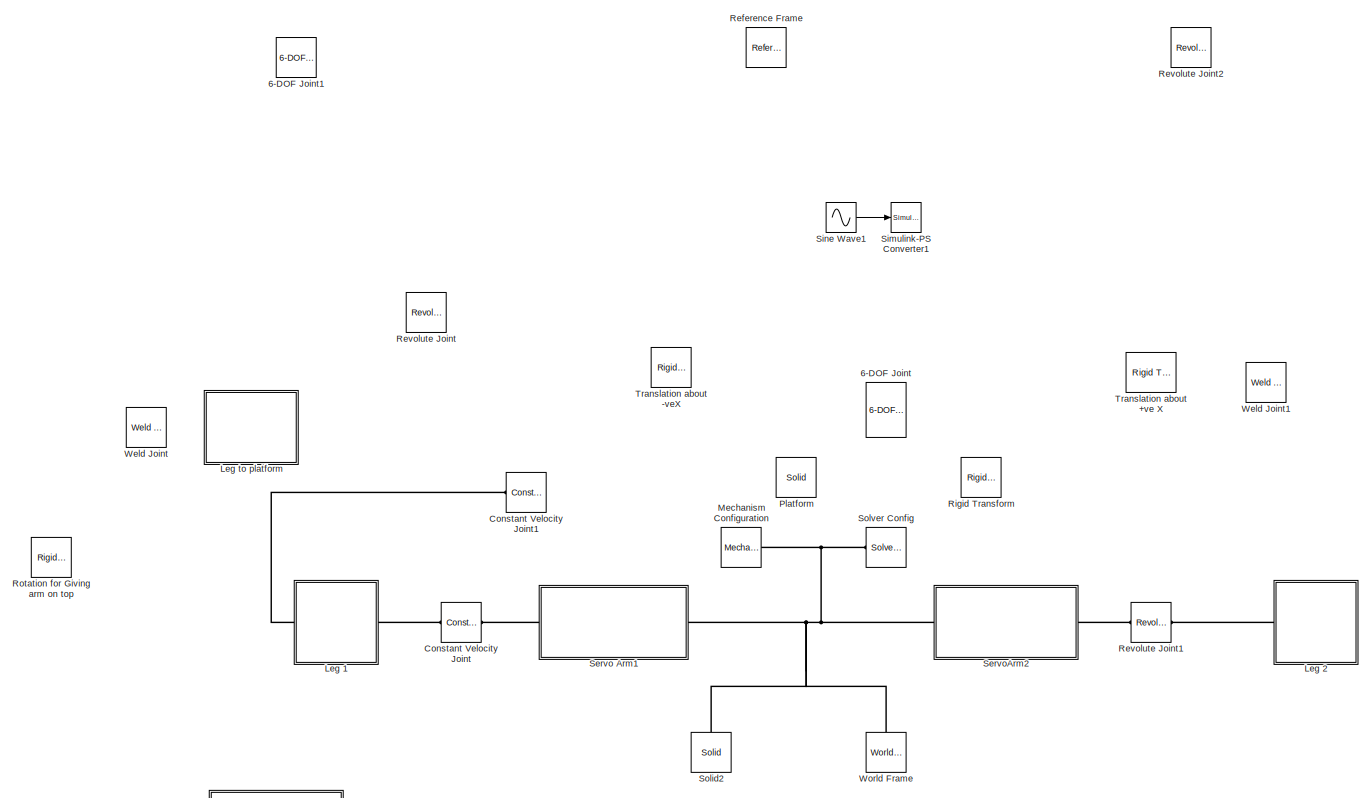
[diagram: root canvas - part 1/2, full width, top band]
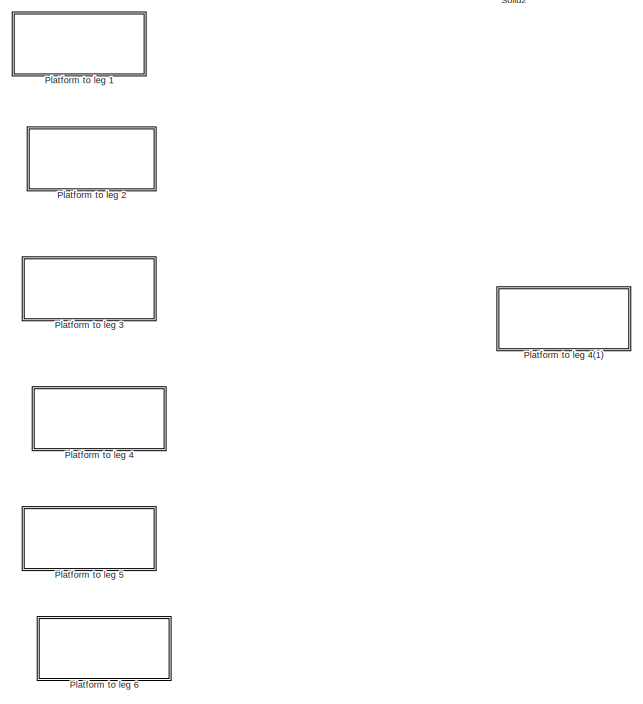
[diagram: root canvas - part 2/2, bottom center region]
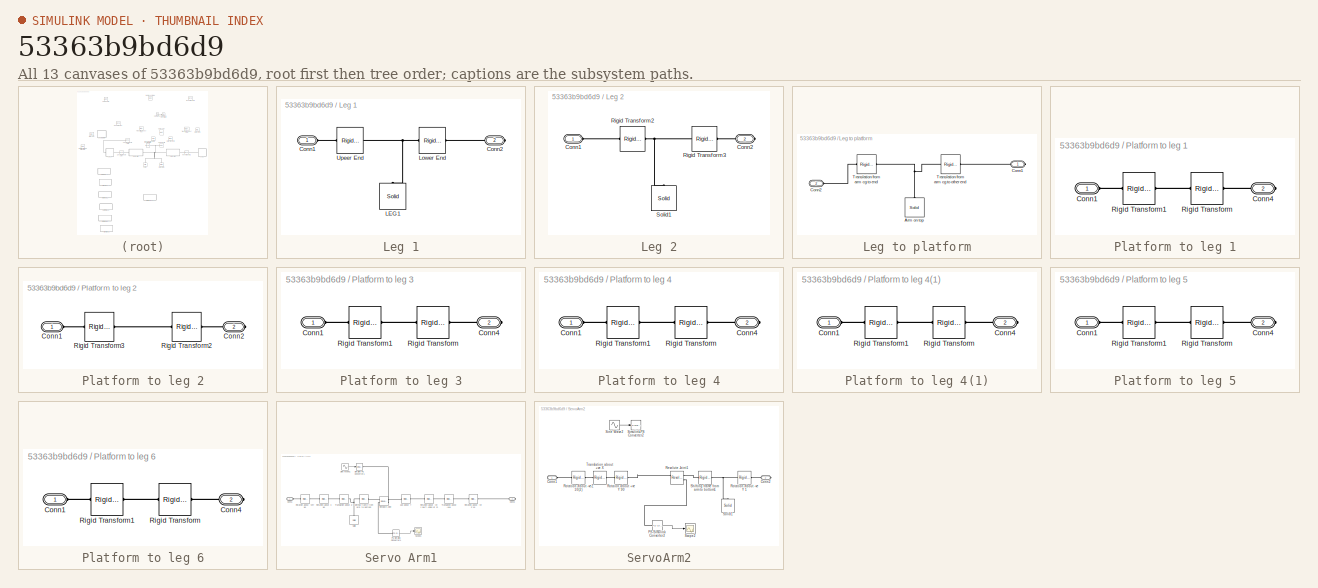
[diagram: thumbnail index - all 13 canvases of the model, root first then tree order]
MODEL slx_53363b9bd6d9
KIND model
CONFIG AbsTol = auto
CONFIG FixedStep = auto
CONFIG MaxStep = auto
CONFIG MinStep = auto
CONFIG RelTol = 1e-3
CONFIG SampleTimeConstraint = Unconstrained
CONFIG Solver = ode45
CONFIG SolverMode = Auto
CONFIG SolverName = ode45
CONFIG StartTime = 0.0
CONFIG StopTime = 10.0
BLOCK [Reference] 6-DOF Joint  REF=sm_lib/Joints/6-DOF Joint
  BlockFunction = simmechanics.library.joints.sixdof_joint
  ClassName = SixDofJoint
  CompositeWrenchDir = FollowerOnBase
  CompositeWrenchFrame = BaseFrame
  LogSimulationData = off
  Ports = [0, 0, 0, 0, 0, 1, 1]
  PxDampingCoefficient = 0
  PxDampingCoefficientUnits = N/(m/s)
  PxEquilibriumPosition = 0
  PxEquilibriumPositionUnits = m
  PxMotionActuationMode = ComputedMotion
  PxPositionTargetPriority = High
  PxPositionTargetSpecify = on
  PxPositionTargetValue = 0
  PxPositionTargetValueUnits = m
  PxSenseAcceleration = off
  PxSensePosition = off
  PxSenseTorqueForce = off
  PxSenseVelocity = off
  PxSpringStiffness = 0
  PxSpringStiffnessUnits = N/m
  PxTorqueActuationMode = NoTorque
  PxVelocityTargetPriority = High
  PxVelocityTargetSpecify = off
  PxVelocityTargetValue = 0
  PxVelocityTargetValueUnits = m/s
  PyDampingCoefficient = 0
  PyDampingCoefficientUnits = N/(m/s)
  PyEquilibriumPosition = 0
  PyEquilibriumPositionUnits = m
  PyMotionActuationMode = ComputedMotion
  PyPositionTargetPriority = High
  PyPositionTargetSpecify = on
  PyPositionTargetValue = 0
  PyPositionTargetValueUnits = m
  PySenseAcceleration = off
  PySensePosition = off
  PySenseTorqueForce = off
  PySenseVelocity = off
  PySpringStiffness = 0
  PySpringStiffnessUnits = N/m
  PyTorqueActuationMode = NoTorque
  PyVelocityTargetPriority = High
  PyVelocityTargetSpecify = off
  PyVelocityTargetValue = 0
  PyVelocityTargetValueUnits = m/s
  PzDampingCoefficient = 0
  PzDampingCoefficientUnits = N/(m/s)
  PzEquilibriumPosition = 0
  PzEquilibriumPositionUnits = m
  PzMotionActuationMode = ComputedMotion
  PzPositionTargetPriority = High
  PzPositionTargetSpecify = on
  PzPositionTargetValue = 0
  PzPositionTargetValueUnits = m
  PzSenseAcceleration = off
  PzSensePosition = off
  PzSenseTorqueForce = off
  PzSenseVelocity = off
  PzSpringStiffness = 0
  PzSpringStiffnessUnits = N/m
  PzTorqueActuationMode = NoTorque
  PzVelocityTargetPriority = High
  PzVelocityTargetSpecify = off
  PzVelocityTargetValue = 0
  PzVelocityTargetValueUnits = m/s
  SenseConstraintForce = off
  SenseConstraintForceX = off
  SenseConstraintForceY = off
  SenseConstraintForceZ = off
  SenseConstraintTorque = off
  SenseConstraintTorqueX = off
  SenseConstraintTorqueY = off
  SenseConstraintTorqueZ = off
  SenseTotalForce = off
  SenseTotalForceX = off
  SenseTotalForceY = off
  SenseTotalForceZ = off
  SenseTotalTorque = off
  SenseTotalTorqueX = off
  SenseTotalTorqueY = off
  SenseTotalTorqueZ = off
  SourceBlock = sm_lib/Joints/6-DOF Joint
  SourceType = 6-DOF Joint
  SphActuateTorque = off
  SphActuateTorqueX = off
  SphActuateTorqueY = off
  SphActuateTorqueZ = off
  SphActuationFrame = BaseFrame
  SphDampingCoefficient = 0
  SphDampingCoefficientUnits = N*m/(deg/s)
  SphDefPosBaseAlignAxisA = +Y
  SphDefPosBaseAlignAxisB = +Z
  SphDefPosFollAlignAxisA = +X
  SphDefPosFollAlignAxisB = +Y
  SphDefPosRotationAngle = 0.0
  SphDefPosRotationAngleUnits = deg
  SphDefPosRotationArbitraryAxis = [0 0 1]
  SphDefPosRotationMatrix = [1 0 0; 0 1 0; 0 0 1]
  SphDefPosRotationMethod = None
  SphDefPosRotationStandardAxis = +Z
  SphEqPosBaseAlignAxisA = +Y
  SphEqPosBaseAlignAxisB = +Z
  SphEqPosFollAlignAxisA = +X
  SphEqPosFollAlignAxisB = +Y
  SphEqPosRotationAngle = 0.0
  SphEqPosRotationAngleUnits = deg
  SphEqPosRotationArbitraryAxis = [0 0 1]
  SphEqPosRotationMatrix = [1 0 0; 0 1 0; 0 0 1]
  SphEqPosRotationMethod = None
  SphEqPosRotationStandardAxis = +Z
  SphMotionActuationMode = ComputedMotion
  SphPositionTargetBaseAlignAxisA = +Y
  SphPositionTargetBaseAlignAxisB = +Z
  SphPositionTargetFollAlignAxisA = +X
  SphPositionTargetFollAlignAxisB = +Y
  SphPositionTargetPriority = High
  SphPositionTargetRotationAngle = 0.0
  SphPositionTargetRotationAngleUnits = deg
  SphPositionTargetRotationArbitraryAxis = [0 0 1]
  SphPositionTargetRotationMatrix = [1 0 0; 0 1 0; 0 0 1]
  SphPositionTargetRotationMethod = RotationMatrix
  SphPositionTargetRotationStandardAxis = +Z
  SphPositionTargetSpecify = on
  SphSenseAcceleration = off
  SphSenseAccelerationX = off
  SphSenseAccelerationY = off
  SphSenseAccelerationZ = off
  SphSensePosition = off
  SphSenseTorqueForce = off
  SphSenseTorqueX = off
  SphSenseTorqueY = off
  SphSenseTorqueZ = off
  SphSenseVelocity = off
  SphSenseVelocityX = off
  SphSenseVelocityY = off
  SphSenseVelocityZ = off
  SphSensingFrame = BaseFrame
  SphSpringStiffness = 0
  SphSpringStiffnessUnits = N*m/deg
  SphTorqueActuationMode = NoTorque
  SphVelocityTargetInFollowerFrame = on
  SphVelocityTargetPriority = High
  SphVelocityTargetSpecify = off
  SphVelocityTargetValue = [0 0 0]
  SphVelocityTargetValueUnits = deg/s
BLOCK [Reference] 6-DOF Joint1  REF=sm_lib/Joints/6-DOF Joint
  BlockFunction = simmechanics.library.joints.sixdof_joint
  ClassName = SixDofJoint
  CompositeWrenchDir = FollowerOnBase
  CompositeWrenchFrame = BaseFrame
  LogSimulationData = off
  Ports = [0, 0, 0, 0, 0, 1, 1]
  PxDampingCoefficient = 0
  PxDampingCoefficientUnits = N/(m/s)
  PxEquilibriumPosition = 0
  PxEquilibriumPositionUnits = m
  PxMotionActuationMode = ComputedMotion
  PxPositionTargetPriority = High
  PxPositionTargetSpecify = off
  PxPositionTargetValue = 0
  PxPositionTargetValueUnits = m
  PxSenseAcceleration = off
  PxSensePosition = off
  PxSenseTorqueForce = off
  PxSenseVelocity = off
  PxSpringStiffness = 0
  PxSpringStiffnessUnits = N/m
  PxTorqueActuationMode = NoTorque
  PxVelocityTargetPriority = High
  PxVelocityTargetSpecify = off
  PxVelocityTargetValue = 0
  PxVelocityTargetValueUnits = m/s
  PyDampingCoefficient = 0
  PyDampingCoefficientUnits = N/(m/s)
  PyEquilibriumPosition = 0
  PyEquilibriumPositionUnits = m
  PyMotionActuationMode = ComputedMotion
  PyPositionTargetPriority = High
  PyPositionTargetSpecify = off
  PyPositionTargetValue = 0
  PyPositionTargetValueUnits = m
  PySenseAcceleration = off
  PySensePosition = off
  PySenseTorqueForce = off
  PySenseVelocity = off
  PySpringStiffness = 0
  PySpringStiffnessUnits = N/m
  PyTorqueActuationMode = NoTorque
  PyVelocityTargetPriority = High
  PyVelocityTargetSpecify = off
  PyVelocityTargetValue = 0
  PyVelocityTargetValueUnits = m/s
  PzDampingCoefficient = 0
  PzDampingCoefficientUnits = N/(m/s)
  PzEquilibriumPosition = 0
  PzEquilibriumPositionUnits = m
  PzMotionActuationMode = ComputedMotion
  PzPositionTargetPriority = High
  PzPositionTargetSpecify = off
  PzPositionTargetValue = 0
  PzPositionTargetValueUnits = m
  PzSenseAcceleration = off
  PzSensePosition = off
  PzSenseTorqueForce = off
  PzSenseVelocity = off
  PzSpringStiffness = 0
  PzSpringStiffnessUnits = N/m
  PzTorqueActuationMode = NoTorque
  PzVelocityTargetPriority = High
  PzVelocityTargetSpecify = off
  PzVelocityTargetValue = 0
  PzVelocityTargetValueUnits = m/s
  SenseConstraintForce = off
  SenseConstraintForceX = off
  SenseConstraintForceY = off
  SenseConstraintForceZ = off
  SenseConstraintTorque = off
  SenseConstraintTorqueX = off
  SenseConstraintTorqueY = off
  SenseConstraintTorqueZ = off
  SenseTotalForce = off
  SenseTotalForceX = off
  SenseTotalForceY = off
  SenseTotalForceZ = off
  SenseTotalTorque = off
  SenseTotalTorqueX = off
  SenseTotalTorqueY = off
  SenseTotalTorqueZ = off
  SourceBlock = sm_lib/Joints/6-DOF Joint
  SourceType = 6-DOF Joint
  SphActuateTorque = off
  SphActuateTorqueX = off
  SphActuateTorqueY = off
  SphActuateTorqueZ = off
  SphActuationFrame = BaseFrame
  SphDampingCoefficient = 0
  SphDampingCoefficientUnits = N*m/(deg/s)
  SphDefPosBaseAlignAxisA = +Y
  SphDefPosBaseAlignAxisB = +Z
  SphDefPosFollAlignAxisA = +X
  SphDefPosFollAlignAxisB = +Y
  SphDefPosRotationAngle = 0.0
  SphDefPosRotationAngleUnits = deg
  SphDefPosRotationArbitraryAxis = [0 0 1]
  SphDefPosRotationMatrix = [1 0 0; 0 1 0; 0 0 1]
  SphDefPosRotationMethod = None
  SphDefPosRotationStandardAxis = +Z
  SphEqPosBaseAlignAxisA = +Y
  SphEqPosBaseAlignAxisB = +Z
  SphEqPosFollAlignAxisA = +X
  SphEqPosFollAlignAxisB = +Y
  SphEqPosRotationAngle = 0.0
  SphEqPosRotationAngleUnits = deg
  SphEqPosRotationArbitraryAxis = [0 0 1]
  SphEqPosRotationMatrix = [1 0 0; 0 1 0; 0 0 1]
  SphEqPosRotationMethod = None
  SphEqPosRotationStandardAxis = +Z
  SphMotionActuationMode = ComputedMotion
  SphPositionTargetBaseAlignAxisA = +Y
  SphPositionTargetBaseAlignAxisB = +Z
  SphPositionTargetFollAlignAxisA = +X
  SphPositionTargetFollAlignAxisB = +Y
  SphPositionTargetPriority = High
  SphPositionTargetRotationAngle = 0.0
  SphPositionTargetRotationAngleUnits = deg
  SphPositionTargetRotationArbitraryAxis = [0 0 1]
  SphPositionTargetRotationMatrix = [1 0 0; 0 1 0; 0 0 1]
  SphPositionTargetRotationMethod = None
  SphPositionTargetRotationStandardAxis = +Z
  SphPositionTargetSpecify = off
  SphSenseAcceleration = off
  SphSenseAccelerationX = off
  SphSenseAccelerationY = off
  SphSenseAccelerationZ = off
  SphSensePosition = off
  SphSenseTorqueForce = off
  SphSenseTorqueX = off
  SphSenseTorqueY = off
  SphSenseTorqueZ = off
  SphSenseVelocity = off
  SphSenseVelocityX = off
  SphSenseVelocityY = off
  SphSenseVelocityZ = off
  SphSensingFrame = BaseFrame
  SphSpringStiffness = 0
  SphSpringStiffnessUnits = N*m/deg
  SphTorqueActuationMode = NoTorque
  SphVelocityTargetInFollowerFrame = on
  SphVelocityTargetPriority = High
  SphVelocityTargetSpecify = off
  SphVelocityTargetValue = [0 0 0]
  SphVelocityTargetValueUnits = deg/s
BLOCK [Reference] Constant Velocity Joint  REF=sm_lib/Joints/Constant Velocity
Joint
  BlockFunction = simmechanics.library.joints.constant_velocity_joint
  ClassName = ConstantVelocityJoint
  CompositeWrenchDir = FollowerOnBase
  CompositeWrenchFrame = BaseFrame
  LogSimulationData = off
  Ports = [0, 0, 0, 0, 0, 1, 1]
  PositionTargetAzimuthValue = -90
  PositionTargetAzimuthValueUnits = deg
  PositionTargetBendAngleValue = 135
  PositionTargetBendAngleValueUnits = deg
  PositionTargetPriority = High
  PositionTargetSpecificationMethod = BendAngleAndAzimuth
  PositionTargetSpecify = on
  SenseAzimuthAcceleration = off
  SenseAzimuthPosition = off
  SenseAzimuthVelocity = off
  SenseBendAngleAcceleration = off
  SenseBendAnglePosition = off
  SenseBendAngleVelocity = off
  SenseConstraintForce = off
  SenseConstraintForceX = off
  SenseConstraintForceY = off
  SenseConstraintForceZ = off
  SenseConstraintTorque = off
  SenseConstraintTorqueX = off
  SenseConstraintTorqueY = off
  SenseConstraintTorqueZ = off
  SenseTotalForce = off
  SenseTotalForceX = off
  SenseTotalForceY = off
  SenseTotalForceZ = off
  SenseTotalTorque = off
  SenseTotalTorqueX = off
  SenseTotalTorqueY = off
  SenseTotalTorqueZ = off
  SourceBlock = sm_lib/Joints/Constant Velocity\nJoint
  SourceType = Constant Velocity\nJoint
  VelocityTargetAzimuthValue = 0.0
  VelocityTargetAzimuthValueUnits = deg/s
  VelocityTargetBendAngleValue = 0.0
  VelocityTargetBendAngleValueUnits = deg/s
  VelocityTargetPriority = High
  VelocityTargetSpecificationMethod = BendAngleOnly
  VelocityTargetSpecify = off
BLOCK [Reference] Constant Velocity Joint1  REF=sm_lib/Joints/Constant Velocity
Joint
  BlockFunction = simmechanics.library.joints.constant_velocity_joint
  ClassName = ConstantVelocityJoint
  CompositeWrenchDir = FollowerOnBase
  CompositeWrenchFrame = BaseFrame
  LogSimulationData = off
  Ports = [0, 0, 0, 0, 0, 1, 1]
  PositionTargetAzimuthValue = 0.0
  PositionTargetAzimuthValueUnits = deg
  PositionTargetBendAngleValue = 0.0
  PositionTargetBendAngleValueUnits = deg
  PositionTargetPriority = High
  PositionTargetSpecificationMethod = BendAngleOnly
  PositionTargetSpecify = off
  SenseAzimuthAcceleration = off
  SenseAzimuthPosition = off
  SenseAzimuthVelocity = off
  SenseBendAngleAcceleration = off
  SenseBendAnglePosition = off
  SenseBendAngleVelocity = off
  SenseConstraintForce = off
  SenseConstraintForceX = off
  SenseConstraintForceY = off
  SenseConstraintForceZ = off
  SenseConstraintTorque = off
  SenseConstraintTorqueX = off
  SenseConstraintTorqueY = off
  SenseConstraintTorqueZ = off
  SenseTotalForce = off
  SenseTotalForceX = off
  SenseTotalForceY = off
  SenseTotalForceZ = off
  SenseTotalTorque = off
  SenseTotalTorqueX = off
  SenseTotalTorqueY = off
  SenseTotalTorqueZ = off
  SourceBlock = sm_lib/Joints/Constant Velocity\nJoint
  SourceType = Constant Velocity\nJoint
  VelocityTargetAzimuthValue = 0.0
  VelocityTargetAzimuthValueUnits = deg/s
  VelocityTargetBendAngleValue = 0.0
  VelocityTargetBendAngleValueUnits = deg/s
  VelocityTargetPriority = High
  VelocityTargetSpecificationMethod = BendAngleOnly
  VelocityTargetSpecify = off
BLOCK [SubSystem] Leg 1
  Ports = [0, 0, 0, 0, 0, 1, 1]
  RequestExecContextInheritance = off
BLOCK [PMIOPort] Leg 1/Conn1
  Port = 1
  Side = Left
BLOCK [PMIOPort] Leg 1/Conn2
  Port = 2
  Side = Right
BLOCK [Reference] Leg 1/LEG1  REF=sm_lib/Body Elements/Solid
  BlockFunction = simmechanics.library.body_elements.solid
  BrickDimensionUnits = m
  BrickDimensions = [1 1 1]
  CenterOfMass = [0 0 0]
  CenterOfMassUnits = m
  ClassName = Solid
  CylinderLength = 20
  CylinderLengthUnits = cm
  CylinderRadius = 3
  CylinderRadiusUnits = mm
  Density = 1000
  DensityBased = on
  DensityUnits = kg/(m^3)
  EllipsoidRadii = [1 1 1]
  EllipsoidRadiiUnits = m
  ExtGeomFileType = STL
  ExtGeomFileUnits = m
  ExtrusionCrossSection = [1 1; -1 1; -1 -1; 1 -1]
  ExtrusionCrossSectionUnits = m
  ExtrusionLength = 1
  ExtrusionLengthUnits = m
  GeometryShape = Cylinder
  GraphicAmbientColor = [0.15 0.15 0.15 1.0]
  GraphicDiffuseColor = [0.0 0.0 0.0]
  GraphicEmissiveColor = [0.0 0.0 0.0 1.0]
  GraphicOpacity = 1.0
  GraphicShininess = 75
  GraphicSpecularColor = [0.5 0.5 0.5 1.0]
  GraphicType = FromGeometry
  GraphicVisPropType = SimpleVisualProperties
  InertiaType = CalculateFromGeometry
  LogSimulationData = off
  MarkerShape = Sphere
  MarkerSize = 10
  MarkerSizeUnits = m
  Mass = 1
  MassUnits = kg
  MomentsOfInertia = [1 1 1]
  MomentsOfInertiaUnits = kg*m^2
  PolygonNumSides = 3
  PolygonOuterRadius = 1
  PolygonOuterRadiusUnits = m
  Ports = [0, 0, 0, 0, 0, 0, 1]
  ProductsOfInertia = [0 0 0]
  ProductsOfInertiaUnits = kg*m^2
  RectangleSize = [1 1]
  RectangleSizeUnits = m
  RevolutionAngle = 180
  RevolutionAngleUnits = deg
  RevolutionCrossSection = [1 1; 1 -1; 2 -1; 2 1]
  RevolutionCrossSectionUnits = m
  RevolutionExtent = Full
  SourceBlock = sm_lib/Body Elements/Solid
  SourceType = Solid
  SphereRadius = 1
  SphereRadiusUnits = m
BLOCK [Reference] Leg 1/Lower End  REF=sm_lib/Frames and
Transforms/Rigid
Transform
  BaseAlignAxisA = +Y
  BaseAlignAxisB = +Z
  BlockFunction = simmechanics.library.frames_transforms.rigid_transform
  ClassName = RigidTransform
  FollAlignAxisA = +X
  FollAlignAxisB = +Y
  LogSimulationData = off
  Ports = [0, 0, 0, 0, 0, 1, 1]
  RotationAngle = 90
  RotationAngleUnits = deg
  RotationArbitraryAxis = [0 0 1]
  RotationMatrix = [1 0 0; 0 1 0; 0 0 1]
  RotationMethod = StandardAxis
  RotationStandardAxis = +X
  SourceBlock = sm_lib/Frames and\nTransforms/Rigid\nTransform
  SourceType = Rigid\nTransform
  TranslationCartesianOffset = [0 0 0]
  TranslationLengthUnit = m
  TranslationMethod = StandardAxis
  TranslationROffset = 0
  TranslationROffsetUnits = m
  TranslationStandardAxis = -Z
  TranslationStandardOffset = 0.1
  TranslationThetaOffset = 0
  TranslationThetaOffsetUnits = deg
  TranslationZOffset = 0
  TranslationZOffsetUnits = m
BLOCK [Reference] Leg 1/Upeer End  REF=sm_lib/Frames and
Transforms/Rigid
Transform
  BaseAlignAxisA = +Y
  BaseAlignAxisB = +Z
  BlockFunction = simmechanics.library.frames_transforms.rigid_transform
  ClassName = RigidTransform
  FollAlignAxisA = +X
  FollAlignAxisB = +Y
  LogSimulationData = off
  Ports = [0, 0, 0, 0, 0, 1, 1]
  RotationAngle = 0.0
  RotationAngleUnits = deg
  RotationArbitraryAxis = [0 0 1]
  RotationMatrix = [1 0 0; 0 1 0; 0 0 1]
  RotationMethod = None
  RotationStandardAxis = +Z
  SourceBlock = sm_lib/Frames and\nTransforms/Rigid\nTransform
  SourceType = Rigid\nTransform
  TranslationCartesianOffset = [0 0 0]
  TranslationLengthUnit = m
  TranslationMethod = StandardAxis
  TranslationROffset = 0
  TranslationROffsetUnits = m
  TranslationStandardAxis = +Z
  TranslationStandardOffset = 0.1
  TranslationThetaOffset = 0
  TranslationThetaOffsetUnits = deg
  TranslationZOffset = 0
  TranslationZOffsetUnits = m
BLOCK [SubSystem] Leg 2
  Ports = [0, 0, 0, 0, 0, 1, 1]
  RequestExecContextInheritance = off
BLOCK [PMIOPort] Leg 2/Conn1
  Port = 1
  Side = Left
BLOCK [PMIOPort] Leg 2/Conn2
  Port = 2
  Side = Right
BLOCK [Reference] Leg 2/Rigid Transform2  REF=sm_lib/Frames and
Transforms/Rigid
Transform
  BaseAlignAxisA = +Y
  BaseAlignAxisB = +Z
  BlockFunction = simmechanics.library.frames_transforms.rigid_transform
  ClassName = RigidTransform
  FollAlignAxisA = +X
  FollAlignAxisB = +Y
  LogSimulationData = off
  Ports = [0, 0, 0, 0, 0, 1, 1]
  RotationAngle = 90
  RotationAngleUnits = deg
  RotationArbitraryAxis = [0 0 1]
  RotationMatrix = [1 0 0; 0 1 0; 0 0 1]
  RotationMethod = StandardAxis
  RotationStandardAxis = +X
  SourceBlock = sm_lib/Frames and\nTransforms/Rigid\nTransform
  SourceType = Rigid\nTransform
  TranslationCartesianOffset = [0 0 0]
  TranslationLengthUnit = m
  TranslationMethod = StandardAxis
  TranslationROffset = 0
  TranslationROffsetUnits = m
  TranslationStandardAxis = -Z
  TranslationStandardOffset = 0.1
  TranslationThetaOffset = 0
  TranslationThetaOffsetUnits = deg
  TranslationZOffset = 0
  TranslationZOffsetUnits = m
BLOCK [Reference] Leg 2/Rigid Transform3  REF=sm_lib/Frames and
Transforms/Rigid
Transform
  BaseAlignAxisA = +Y
  BaseAlignAxisB = +Z
  BlockFunction = simmechanics.library.frames_transforms.rigid_transform
  ClassName = RigidTransform
  FollAlignAxisA = +X
  FollAlignAxisB = +Y
  LogSimulationData = off
  Ports = [0, 0, 0, 0, 0, 1, 1]
  RotationAngle = 0.0
  RotationAngleUnits = deg
  RotationArbitraryAxis = [0 0 1]
  RotationMatrix = [1 0 0; 0 1 0; 0 0 1]
  RotationMethod = None
  RotationStandardAxis = +Z
  SourceBlock = sm_lib/Frames and\nTransforms/Rigid\nTransform
  SourceType = Rigid\nTransform
  TranslationCartesianOffset = [0 0 0]
  TranslationLengthUnit = m
  TranslationMethod = StandardAxis
  TranslationROffset = 0
  TranslationROffsetUnits = m
  TranslationStandardAxis = +Z
  TranslationStandardOffset = 0.1
  TranslationThetaOffset = 0
  TranslationThetaOffsetUnits = deg
  TranslationZOffset = 0
  TranslationZOffsetUnits = m
BLOCK [Reference] Leg 2/Solid1  REF=sm_lib/Body Elements/Solid
  BlockFunction = simmechanics.library.body_elements.solid
  BrickDimensionUnits = m
  BrickDimensions = [1 1 1]
  CenterOfMass = [0 0 0]
  CenterOfMassUnits = m
  ClassName = Solid
  CylinderLength = 20
  CylinderLengthUnits = cm
  CylinderRadius = 3
  CylinderRadiusUnits = mm
  Density = 1000
  DensityBased = on
  DensityUnits = kg/(m^3)
  EllipsoidRadii = [1 1 1]
  EllipsoidRadiiUnits = m
  ExtGeomFileType = STL
  ExtGeomFileUnits = m
  ExtrusionCrossSection = [1 1; -1 1; -1 -1; 1 -1]
  ExtrusionCrossSectionUnits = m
  ExtrusionLength = 1
  ExtrusionLengthUnits = m
  GeometryShape = Cylinder
  GraphicAmbientColor = [0.15 0.15 0.15 1.0]
  GraphicDiffuseColor = [0.0 0.0 0.0]
  GraphicEmissiveColor = [0.0 0.0 0.0 1.0]
  GraphicOpacity = 1.0
  GraphicShininess = 75
  GraphicSpecularColor = [0.5 0.5 0.5 1.0]
  GraphicType = FromGeometry
  GraphicVisPropType = SimpleVisualProperties
  InertiaType = CalculateFromGeometry
  LogSimulationData = off
  MarkerShape = Sphere
  MarkerSize = 10
  MarkerSizeUnits = m
  Mass = 1
  MassUnits = kg
  MomentsOfInertia = [1 1 1]
  MomentsOfInertiaUnits = kg*m^2
  PolygonNumSides = 3
  PolygonOuterRadius = 1
  PolygonOuterRadiusUnits = m
  Ports = [0, 0, 0, 0, 0, 0, 1]
  ProductsOfInertia = [0 0 0]
  ProductsOfInertiaUnits = kg*m^2
  RectangleSize = [1 1]
  RectangleSizeUnits = m
  RevolutionAngle = 180
  RevolutionAngleUnits = deg
  RevolutionCrossSection = [1 1; 1 -1; 2 -1; 2 1]
  RevolutionCrossSectionUnits = m
  RevolutionExtent = Full
  SourceBlock = sm_lib/Body Elements/Solid
  SourceType = Solid
  SphereRadius = 1
  SphereRadiusUnits = m
BLOCK [SubSystem] Leg to platform
  Ports = [0, 0, 0, 0, 0, 1, 1]
  RequestExecContextInheritance = off
BLOCK [Reference] Leg to platform/Arm on top  REF=sm_lib/Body Elements/Solid
  BlockFunction = simmechanics.library.body_elements.solid
  BrickDimensionUnits = m
  BrickDimensions = [1 1 1]
  CenterOfMass = [0 0 0]
  CenterOfMassUnits = m
  ClassName = Solid
  CylinderLength = 3.49
  CylinderLengthUnits = cm
  CylinderRadius = 3
  CylinderRadiusUnits = mm
  Density = 1000
  DensityBased = on
  DensityUnits = kg/(m^3)
  EllipsoidRadii = [1 1 1]
  EllipsoidRadiiUnits = m
  ExtGeomFileType = STL
  ExtGeomFileUnits = m
  ExtrusionCrossSection = [1 1; -1 1; -1 -1; 1 -1]
  ExtrusionCrossSectionUnits = m
  ExtrusionLength = 1
  ExtrusionLengthUnits = m
  GeometryShape = Cylinder
  GraphicAmbientColor = [0.15 0.15 0.15 1.0]
  GraphicDiffuseColor = [0.5 0.5 0.5]
  GraphicEmissiveColor = [0.0 0.0 0.0 1.0]
  GraphicOpacity = 1.0
  GraphicShininess = 75
  GraphicSpecularColor = [0.5 0.5 0.5 1.0]
  GraphicType = FromGeometry
  GraphicVisPropType = SimpleVisualProperties
  InertiaType = CalculateFromGeometry
  LogSimulationData = off
  MarkerShape = Sphere
  MarkerSize = 10
  MarkerSizeUnits = m
  Mass = 1
  MassUnits = kg
  MomentsOfInertia = [1 1 1]
  MomentsOfInertiaUnits = kg*m^2
  PolygonNumSides = 3
  PolygonOuterRadius = 1
  PolygonOuterRadiusUnits = m
  Ports = [0, 0, 0, 0, 0, 0, 1]
  ProductsOfInertia = [0 0 0]
  ProductsOfInertiaUnits = kg*m^2
  RectangleSize = [1 1]
  RectangleSizeUnits = m
  RevolutionAngle = 180
  RevolutionAngleUnits = deg
  RevolutionCrossSection = [1 1; 1 -1; 2 -1; 2 1]
  RevolutionCrossSectionUnits = m
  RevolutionExtent = Full
  SourceBlock = sm_lib/Body Elements/Solid
  SourceType = Solid
  SphereRadius = 1
  SphereRadiusUnits = m
BLOCK [PMIOPort] Leg to platform/Conn1
  Port = 1
  Side = Right
BLOCK [PMIOPort] Leg to platform/Conn2
  Port = 2
  Side = Left
BLOCK [Reference] Leg to platform/Translation from arm cg to end  REF=sm_lib/Frames and
Transforms/Rigid
Transform
  BaseAlignAxisA = +Y
  BaseAlignAxisB = +Z
  BlockFunction = simmechanics.library.frames_transforms.rigid_transform
  ClassName = RigidTransform
  FollAlignAxisA = +X
  FollAlignAxisB = +Y
  LogSimulationData = off
  Ports = [0, 0, 0, 0, 0, 1, 1]
  RotationAngle = 90
  RotationAngleUnits = deg
  RotationArbitraryAxis = [0 0 1]
  RotationMatrix = [1 0 0; 0 1 0; 0 0 1]
  RotationMethod = None
  RotationStandardAxis = -Y
  SourceBlock = sm_lib/Frames and\nTransforms/Rigid\nTransform
  SourceType = Rigid\nTransform
  TranslationCartesianOffset = [0 0 0]
  TranslationLengthUnit = cm
  TranslationMethod = StandardAxis
  TranslationROffset = 0
  TranslationROffsetUnits = m
  TranslationStandardAxis = -Z
  TranslationStandardOffset = 1.745
  TranslationThetaOffset = 0
  TranslationThetaOffsetUnits = deg
  TranslationZOffset = 0
  TranslationZOffsetUnits = m
BLOCK [Reference] Leg to platform/Translation from arm cg to other end  REF=sm_lib/Frames and
Transforms/Rigid
Transform
  BaseAlignAxisA = +Y
  BaseAlignAxisB = +Z
  BlockFunction = simmechanics.library.frames_transforms.rigid_transform
  ClassName = RigidTransform
  FollAlignAxisA = +X
  FollAlignAxisB = +Y
  LogSimulationData = off
  Ports = [0, 0, 0, 0, 0, 1, 1]
  RotationAngle = 90
  RotationAngleUnits = deg
  RotationArbitraryAxis = [0 0 1]
  RotationMatrix = [1 0 0; 0 1 0; 0 0 1]
  RotationMethod = StandardAxis
  RotationStandardAxis = -X
  SourceBlock = sm_lib/Frames and\nTransforms/Rigid\nTransform
  SourceType = Rigid\nTransform
  TranslationCartesianOffset = [0 0 0]
  TranslationLengthUnit = cm
  TranslationMethod = StandardAxis
  TranslationROffset = 0
  TranslationROffsetUnits = m
  TranslationStandardAxis = +Z
  TranslationStandardOffset = 1.745
  TranslationThetaOffset = 0
  TranslationThetaOffsetUnits = deg
  TranslationZOffset = 0
  TranslationZOffsetUnits = m
BLOCK [Reference] Mechanism Configuration  REF=sm_lib/Utilities/Mechanism
Configuration
  BlockFunction = simmechanics.library.utilities.mechanism_configuration
  ClassName = MechanismConfiguration
  GravityUnits = m/s^2
  GravityVector = [0 0 0]
  LinearizationDelta = 0.001
  LogSimulationData = off
  Ports = [0, 0, 0, 0, 0, 0, 1]
  SourceBlock = sm_lib/Utilities/Mechanism\nConfiguration
  SourceType = Mechanism\nConfiguration
  UniformGravity = Constant
BLOCK [Reference] Platform  REF=sm_lib/Body Elements/Solid
  BlockFunction = simmechanics.library.body_elements.solid
  BrickDimensionUnits = m
  BrickDimensions = [1 1 1]
  CenterOfMass = [0 0 0]
  CenterOfMassUnits = m
  ClassName = Solid
  CylinderLength = 1
  CylinderLengthUnits = cm
  CylinderRadius = 20
  CylinderRadiusUnits = cm
  Density = 1000
  DensityBased = on
  DensityUnits = kg/(m^3)
  EllipsoidRadii = [1 1 1]
  EllipsoidRadiiUnits = m
  ExtGeomFileType = STL
  ExtGeomFileUnits = m
  ExtrusionCrossSection = [1 1; -1 1; -1 -1; 1 -1]
  ExtrusionCrossSectionUnits = m
  ExtrusionLength = 1
  ExtrusionLengthUnits = m
  GeometryShape = Cylinder
  GraphicAmbientColor = [0.15 0.15 0.15 1.0]
  GraphicDiffuseColor = [1.0 1.0 0.0]
  GraphicEmissiveColor = [0.0 0.0 0.0 1.0]
  GraphicOpacity = 1.0
  GraphicShininess = 75
  GraphicSpecularColor = [0.5 0.5 0.5 1.0]
  GraphicType = FromGeometry
  GraphicVisPropType = SimpleVisualProperties
  InertiaType = CalculateFromGeometry
  LogSimulationData = off
  MarkerShape = Sphere
  MarkerSize = 10
  MarkerSizeUnits = m
  Mass = 1
  MassUnits = kg
  MomentsOfInertia = [1 1 1]
  MomentsOfInertiaUnits = kg*m^2
  PolygonNumSides = 3
  PolygonOuterRadius = 1
  PolygonOuterRadiusUnits = m
  Ports = [0, 0, 0, 0, 0, 0, 1]
  ProductsOfInertia = [0 0 0]
  ProductsOfInertiaUnits = kg*m^2
  RectangleSize = [1 1]
  RectangleSizeUnits = m
  RevolutionAngle = 180
  RevolutionAngleUnits = deg
  RevolutionCrossSection = [1 1; 1 -1; 2 -1; 2 1]
  RevolutionCrossSectionUnits = m
  RevolutionExtent = Full
  SourceBlock = sm_lib/Body Elements/Solid
  SourceType = Solid
  SphereRadius = 1
  SphereRadiusUnits = m
BLOCK [SubSystem] Platform to leg 1
  Ports = [0, 0, 0, 0, 0, 1, 1]
  RequestExecContextInheritance = off
BLOCK [PMIOPort] Platform to leg 1/Conn1
  Port = 1
  Side = Left
BLOCK [PMIOPort] Platform to leg 1/Conn4
  Port = 2
  Side = Right
BLOCK [Reference] Platform to leg 1/Rigid Transform  REF=sm_lib/Frames and
Transforms/Rigid
Transform
  BaseAlignAxisA = +Y
  BaseAlignAxisB = +Z
  BlockFunction = simmechanics.library.frames_transforms.rigid_transform
  ClassName = RigidTransform
  FollAlignAxisA = +X
  FollAlignAxisB = +Y
  LogSimulationData = off
  Ports = [0, 0, 0, 0, 0, 1, 1]
  RotationAngle = 53.45
  RotationAngleUnits = deg
  RotationArbitraryAxis = [0 0 1]
  RotationMatrix = [1 0 0; 0 1 0; 0 0 1]
  RotationMethod = StandardAxis
  RotationStandardAxis = +Z
  SourceBlock = sm_lib/Frames and\nTransforms/Rigid\nTransform
  SourceType = Rigid\nTransform
  TranslationCartesianOffset = [0 0 0]
  TranslationLengthUnit = m
  TranslationMethod = None
  TranslationROffset = 0
  TranslationROffsetUnits = m
  TranslationStandardAxis = +Z
  TranslationStandardOffset = 0
  TranslationThetaOffset = 0
  TranslationThetaOffsetUnits = deg
  TranslationZOffset = 0
  TranslationZOffsetUnits = m
BLOCK [Reference] Platform to leg 1/Rigid Transform1  REF=sm_lib/Frames and
Transforms/Rigid
Transform
  BaseAlignAxisA = +Y
  BaseAlignAxisB = +Z
  BlockFunction = simmechanics.library.frames_transforms.rigid_transform
  ClassName = RigidTransform
  FollAlignAxisA = +X
  FollAlignAxisB = +Y
  LogSimulationData = off
  Ports = [0, 0, 0, 0, 0, 1, 1]
  RotationAngle = 0.0
  RotationAngleUnits = deg
  RotationArbitraryAxis = [0 0 1]
  RotationMatrix = [1 0 0; 0 1 0; 0 0 1]
  RotationMethod = None
  RotationStandardAxis = +Z
  SourceBlock = sm_lib/Frames and\nTransforms/Rigid\nTransform
  SourceType = Rigid\nTransform
  TranslationCartesianOffset = [0 0 0]
  TranslationLengthUnit = m
  TranslationMethod = StandardAxis
  TranslationROffset = 0
  TranslationROffsetUnits = m
  TranslationStandardAxis = +X
  TranslationStandardOffset = 0.2
  TranslationThetaOffset = 0
  TranslationThetaOffsetUnits = deg
  TranslationZOffset = 0
  TranslationZOffsetUnits = m
BLOCK [SubSystem] Platform to leg 2
  Ports = [0, 0, 0, 0, 0, 1, 1]
  RequestExecContextInheritance = off
BLOCK [PMIOPort] Platform to leg 2/Conn1
  Port = 1
  Side = Left
BLOCK [PMIOPort] Platform to leg 2/Conn2
  Port = 2
  Side = Right
BLOCK [Reference] Platform to leg 2/Rigid Transform2  REF=sm_lib/Frames and
Transforms/Rigid
Transform
  BaseAlignAxisA = +Y
  BaseAlignAxisB = +Z
  BlockFunction = simmechanics.library.frames_transforms.rigid_transform
  ClassName = RigidTransform
  FollAlignAxisA = +X
  FollAlignAxisB = +Y
  LogSimulationData = off
  Ports = [0, 0, 0, 0, 0, 1, 1]
  RotationAngle = 66.55
  RotationAngleUnits = deg
  RotationArbitraryAxis = [0 0 1]
  RotationMatrix = [1 0 0; 0 1 0; 0 0 1]
  RotationMethod = StandardAxis
  RotationStandardAxis = +Z
  SourceBlock = sm_lib/Frames and\nTransforms/Rigid\nTransform
  SourceType = Rigid\nTransform
  TranslationCartesianOffset = [0 0 0]
  TranslationLengthUnit = m
  TranslationMethod = None
  TranslationROffset = 0
  TranslationROffsetUnits = m
  TranslationStandardAxis = +Z
  TranslationStandardOffset = 0
  TranslationThetaOffset = 0
  TranslationThetaOffsetUnits = deg
  TranslationZOffset = 0
  TranslationZOffsetUnits = m
BLOCK [Reference] Platform to leg 2/Rigid Transform3  REF=sm_lib/Frames and
Transforms/Rigid
Transform
  BaseAlignAxisA = +Y
  BaseAlignAxisB = +Z
  BlockFunction = simmechanics.library.frames_transforms.rigid_transform
  ClassName = RigidTransform
  FollAlignAxisA = +X
  FollAlignAxisB = +Y
  LogSimulationData = off
  Ports = [0, 0, 0, 0, 0, 1, 1]
  RotationAngle = 0.0
  RotationAngleUnits = deg
  RotationArbitraryAxis = [0 0 1]
  RotationMatrix = [1 0 0; 0 1 0; 0 0 1]
  RotationMethod = None
  RotationStandardAxis = +Z
  SourceBlock = sm_lib/Frames and\nTransforms/Rigid\nTransform
  SourceType = Rigid\nTransform
  TranslationCartesianOffset = [0 0 0]
  TranslationLengthUnit = m
  TranslationMethod = StandardAxis
  TranslationROffset = 0
  TranslationROffsetUnits = m
  TranslationStandardAxis = +X
  TranslationStandardOffset = 0.2
  TranslationThetaOffset = 0
  TranslationThetaOffsetUnits = deg
  TranslationZOffset = 0
  TranslationZOffsetUnits = m
BLOCK [SubSystem] Platform to leg 3
  Ports = [0, 0, 0, 0, 0, 1, 1]
  RequestExecContextInheritance = off
BLOCK [PMIOPort] Platform to leg 3/Conn1
  Port = 1
  Side = Left
BLOCK [PMIOPort] Platform to leg 3/Conn4
  Port = 2
  Side = Right
BLOCK [Reference] Platform to leg 3/Rigid Transform  REF=sm_lib/Frames and
Transforms/Rigid
Transform
  BaseAlignAxisA = +Y
  BaseAlignAxisB = +Z
  BlockFunction = simmechanics.library.frames_transforms.rigid_transform
  ClassName = RigidTransform
  FollAlignAxisA = +X
  FollAlignAxisB = +Y
  LogSimulationData = off
  Ports = [0, 0, 0, 0, 0, 1, 1]
  RotationAngle = 173.45
  RotationAngleUnits = deg
  RotationArbitraryAxis = [0 0 1]
  RotationMatrix = [1 0 0; 0 1 0; 0 0 1]
  RotationMethod = StandardAxis
  RotationStandardAxis = +Z
  SourceBlock = sm_lib/Frames and\nTransforms/Rigid\nTransform
  SourceType = Rigid\nTransform
  TranslationCartesianOffset = [0 0 0]
  TranslationLengthUnit = m
  TranslationMethod = None
  TranslationROffset = 0
  TranslationROffsetUnits = m
  TranslationStandardAxis = +Z
  TranslationStandardOffset = 0
  TranslationThetaOffset = 0
  TranslationThetaOffsetUnits = deg
  TranslationZOffset = 0
  TranslationZOffsetUnits = m
BLOCK [Reference] Platform to leg 3/Rigid Transform1  REF=sm_lib/Frames and
Transforms/Rigid
Transform
  BaseAlignAxisA = +Y
  BaseAlignAxisB = +Z
  BlockFunction = simmechanics.library.frames_transforms.rigid_transform
  ClassName = RigidTransform
  FollAlignAxisA = +X
  FollAlignAxisB = +Y
  LogSimulationData = off
  Ports = [0, 0, 0, 0, 0, 1, 1]
  RotationAngle = 0.0
  RotationAngleUnits = deg
  RotationArbitraryAxis = [0 0 1]
  RotationMatrix = [1 0 0; 0 1 0; 0 0 1]
  RotationMethod = None
  RotationStandardAxis = +Z
  SourceBlock = sm_lib/Frames and\nTransforms/Rigid\nTransform
  SourceType = Rigid\nTransform
  TranslationCartesianOffset = [0 0 0]
  TranslationLengthUnit = m
  TranslationMethod = StandardAxis
  TranslationROffset = 0
  TranslationROffsetUnits = m
  TranslationStandardAxis = +X
  TranslationStandardOffset = 0.2
  TranslationThetaOffset = 0
  TranslationThetaOffsetUnits = deg
  TranslationZOffset = 0
  TranslationZOffsetUnits = m
BLOCK [SubSystem] Platform to leg 4
  Ports = [0, 0, 0, 0, 0, 1, 1]
  RequestExecContextInheritance = off
BLOCK [SubSystem] Platform to leg 4(1)
  Ports = [0, 0, 0, 0, 0, 1, 1]
  RequestExecContextInheritance = off
BLOCK [PMIOPort] Platform to leg 4(1)/Conn1
  Port = 1
  Side = Left
BLOCK [PMIOPort] Platform to leg 4(1)/Conn4
  Port = 2
  Side = Right
BLOCK [Reference] Platform to leg 4(1)/Rigid Transform  REF=sm_lib/Frames and
Transforms/Rigid
Transform
  BaseAlignAxisA = +Y
  BaseAlignAxisB = +Z
  BlockFunction = simmechanics.library.frames_transforms.rigid_transform
  ClassName = RigidTransform
  FollAlignAxisA = +X
  FollAlignAxisB = +Y
  LogSimulationData = off
  Ports = [0, 0, 0, 0, 0, 1, 1]
  RotationAngle = 232.25
  RotationAngleUnits = deg
  RotationArbitraryAxis = [0 0 1]
  RotationMatrix = [1 0 0; 0 1 0; 0 0 1]
  RotationMethod = StandardAxis
  RotationStandardAxis = +Z
  SourceBlock = sm_lib/Frames and\nTransforms/Rigid\nTransform
  SourceType = Rigid\nTransform
  TranslationCartesianOffset = [0 0 0]
  TranslationLengthUnit = m
  TranslationMethod = None
  TranslationROffset = 0
  TranslationROffsetUnits = m
  TranslationStandardAxis = +Z
  TranslationStandardOffset = 0
  TranslationThetaOffset = 0
  TranslationThetaOffsetUnits = deg
  TranslationZOffset = 0
  TranslationZOffsetUnits = m
BLOCK [Reference] Platform to leg 4(1)/Rigid Transform1  REF=sm_lib/Frames and
Transforms/Rigid
Transform
  BaseAlignAxisA = +Y
  BaseAlignAxisB = +Z
  BlockFunction = simmechanics.library.frames_transforms.rigid_transform
  ClassName = RigidTransform
  FollAlignAxisA = +X
  FollAlignAxisB = +Y
  LogSimulationData = off
  Ports = [0, 0, 0, 0, 0, 1, 1]
  RotationAngle = 0.0
  RotationAngleUnits = deg
  RotationArbitraryAxis = [0 0 1]
  RotationMatrix = [1 0 0; 0 1 0; 0 0 1]
  RotationMethod = None
  RotationStandardAxis = +Z
  SourceBlock = sm_lib/Frames and\nTransforms/Rigid\nTransform
  SourceType = Rigid\nTransform
  TranslationCartesianOffset = [0 0 0]
  TranslationLengthUnit = m
  TranslationMethod = StandardAxis
  TranslationROffset = 0
  TranslationROffsetUnits = m
  TranslationStandardAxis = +X
  TranslationStandardOffset = 0.2
  TranslationThetaOffset = 0
  TranslationThetaOffsetUnits = deg
  TranslationZOffset = 0
  TranslationZOffsetUnits = m
BLOCK [PMIOPort] Platform to leg 4/Conn1
  Port = 1
  Side = Left
BLOCK [PMIOPort] Platform to leg 4/Conn4
  Port = 2
  Side = Right
BLOCK [Reference] Platform to leg 4/Rigid Transform  REF=sm_lib/Frames and
Transforms/Rigid
Transform
  BaseAlignAxisA = +Y
  BaseAlignAxisB = +Z
  BlockFunction = simmechanics.library.frames_transforms.rigid_transform
  ClassName = RigidTransform
  FollAlignAxisA = +X
  FollAlignAxisB = +Y
  LogSimulationData = off
  Ports = [0, 0, 0, 0, 0, 1, 1]
  RotationAngle = 186.55
  RotationAngleUnits = deg
  RotationArbitraryAxis = [0 0 1]
  RotationMatrix = [1 0 0; 0 1 0; 0 0 1]
  RotationMethod = StandardAxis
  RotationStandardAxis = +Z
  SourceBlock = sm_lib/Frames and\nTransforms/Rigid\nTransform
  SourceType = Rigid\nTransform
  TranslationCartesianOffset = [0 0 0]
  TranslationLengthUnit = m
  TranslationMethod = None
  TranslationROffset = 0
  TranslationROffsetUnits = m
  TranslationStandardAxis = +Z
  TranslationStandardOffset = 0
  TranslationThetaOffset = 0
  TranslationThetaOffsetUnits = deg
  TranslationZOffset = 0
  TranslationZOffsetUnits = m
BLOCK [Reference] Platform to leg 4/Rigid Transform1  REF=sm_lib/Frames and
Transforms/Rigid
Transform
  BaseAlignAxisA = +Y
  BaseAlignAxisB = +Z
  BlockFunction = simmechanics.library.frames_transforms.rigid_transform
  ClassName = RigidTransform
  FollAlignAxisA = +X
  FollAlignAxisB = +Y
  LogSimulationData = off
  Ports = [0, 0, 0, 0, 0, 1, 1]
  RotationAngle = 0.0
  RotationAngleUnits = deg
  RotationArbitraryAxis = [0 0 1]
  RotationMatrix = [1 0 0; 0 1 0; 0 0 1]
  RotationMethod = None
  RotationStandardAxis = +Z
  SourceBlock = sm_lib/Frames and\nTransforms/Rigid\nTransform
  SourceType = Rigid\nTransform
  TranslationCartesianOffset = [0 0 0]
  TranslationLengthUnit = m
  TranslationMethod = StandardAxis
  TranslationROffset = 0
  TranslationROffsetUnits = m
  TranslationStandardAxis = +X
  TranslationStandardOffset = 0.2
  TranslationThetaOffset = 0
  TranslationThetaOffsetUnits = deg
  TranslationZOffset = 0
  TranslationZOffsetUnits = m
BLOCK [SubSystem] Platform to leg 5
  Ports = [0, 0, 0, 0, 0, 1, 1]
  RequestExecContextInheritance = off
BLOCK [PMIOPort] Platform to leg 5/Conn1
  Port = 1
  Side = Left
BLOCK [PMIOPort] Platform to leg 5/Conn4
  Port = 2
  Side = Right
BLOCK [Reference] Platform to leg 5/Rigid Transform  REF=sm_lib/Frames and
Transforms/Rigid
Transform
  BaseAlignAxisA = +Y
  BaseAlignAxisB = +Z
  BlockFunction = simmechanics.library.frames_transforms.rigid_transform
  ClassName = RigidTransform
  FollAlignAxisA = +X
  FollAlignAxisB = +Y
  LogSimulationData = off
  Ports = [0, 0, 0, 0, 0, 1, 1]
  RotationAngle = 293.45
  RotationAngleUnits = deg
  RotationArbitraryAxis = [0 0 1]
  RotationMatrix = [1 0 0; 0 1 0; 0 0 1]
  RotationMethod = StandardAxis
  RotationStandardAxis = +Z
  SourceBlock = sm_lib/Frames and\nTransforms/Rigid\nTransform
  SourceType = Rigid\nTransform
  TranslationCartesianOffset = [0 0 0]
  TranslationLengthUnit = m
  TranslationMethod = None
  TranslationROffset = 0
  TranslationROffsetUnits = m
  TranslationStandardAxis = +Z
  TranslationStandardOffset = 0
  TranslationThetaOffset = 0
  TranslationThetaOffsetUnits = deg
  TranslationZOffset = 0
  TranslationZOffsetUnits = m
BLOCK [Reference] Platform to leg 5/Rigid Transform1  REF=sm_lib/Frames and
Transforms/Rigid
Transform
  BaseAlignAxisA = +Y
  BaseAlignAxisB = +Z
  BlockFunction = simmechanics.library.frames_transforms.rigid_transform
  ClassName = RigidTransform
  FollAlignAxisA = +X
  FollAlignAxisB = +Y
  LogSimulationData = off
  Ports = [0, 0, 0, 0, 0, 1, 1]
  RotationAngle = 0.0
  RotationAngleUnits = deg
  RotationArbitraryAxis = [0 0 1]
  RotationMatrix = [1 0 0; 0 1 0; 0 0 1]
  RotationMethod = None
  RotationStandardAxis = +Z
  SourceBlock = sm_lib/Frames and\nTransforms/Rigid\nTransform
  SourceType = Rigid\nTransform
  TranslationCartesianOffset = [0 0 0]
  TranslationLengthUnit = m
  TranslationMethod = StandardAxis
  TranslationROffset = 0
  TranslationROffsetUnits = m
  TranslationStandardAxis = +X
  TranslationStandardOffset = 0.2
  TranslationThetaOffset = 0
  TranslationThetaOffsetUnits = deg
  TranslationZOffset = 0
  TranslationZOffsetUnits = m
BLOCK [SubSystem] Platform to leg 6
  Ports = [0, 0, 0, 0, 0, 1, 1]
  RequestExecContextInheritance = off
BLOCK [PMIOPort] Platform to leg 6/Conn1
  Port = 1
  Side = Left
BLOCK [PMIOPort] Platform to leg 6/Conn4
  Port = 2
  Side = Right
BLOCK [Reference] Platform to leg 6/Rigid Transform  REF=sm_lib/Frames and
Transforms/Rigid
Transform
  BaseAlignAxisA = +Y
  BaseAlignAxisB = +Z
  BlockFunction = simmechanics.library.frames_transforms.rigid_transform
  ClassName = RigidTransform
  FollAlignAxisA = +X
  FollAlignAxisB = +Y
  LogSimulationData = off
  Ports = [0, 0, 0, 0, 0, 1, 1]
  RotationAngle = 306.55
  RotationAngleUnits = deg
  RotationArbitraryAxis = [0 0 1]
  RotationMatrix = [1 0 0; 0 1 0; 0 0 1]
  RotationMethod = StandardAxis
  RotationStandardAxis = +Z
  SourceBlock = sm_lib/Frames and\nTransforms/Rigid\nTransform
  SourceType = Rigid\nTransform
  TranslationCartesianOffset = [0 0 0]
  TranslationLengthUnit = m
  TranslationMethod = None
  TranslationROffset = 0
  TranslationROffsetUnits = m
  TranslationStandardAxis = +Z
  TranslationStandardOffset = 0
  TranslationThetaOffset = 0
  TranslationThetaOffsetUnits = deg
  TranslationZOffset = 0
  TranslationZOffsetUnits = m
BLOCK [Reference] Platform to leg 6/Rigid Transform1  REF=sm_lib/Frames and
Transforms/Rigid
Transform
  BaseAlignAxisA = +Y
  BaseAlignAxisB = +Z
  BlockFunction = simmechanics.library.frames_transforms.rigid_transform
  ClassName = RigidTransform
  FollAlignAxisA = +X
  FollAlignAxisB = +Y
  LogSimulationData = off
  Ports = [0, 0, 0, 0, 0, 1, 1]
  RotationAngle = 0.0
  RotationAngleUnits = deg
  RotationArbitraryAxis = [0 0 1]
  RotationMatrix = [1 0 0; 0 1 0; 0 0 1]
  RotationMethod = None
  RotationStandardAxis = +Z
  SourceBlock = sm_lib/Frames and\nTransforms/Rigid\nTransform
  SourceType = Rigid\nTransform
  TranslationCartesianOffset = [0 0 0]
  TranslationLengthUnit = m
  TranslationMethod = StandardAxis
  TranslationROffset = 0
  TranslationROffsetUnits = m
  TranslationStandardAxis = +X
  TranslationStandardOffset = 0.2
  TranslationThetaOffset = 0
  TranslationThetaOffsetUnits = deg
  TranslationZOffset = 0
  TranslationZOffsetUnits = m
BLOCK [Reference] Reference Frame  REF=sm_lib/Frames and
Transforms/Reference
Frame
  BlockFunction = simmechanics.library.frames_transforms.reference_frame
  ClassName = ReferenceFrame
  LogSimulationData = off
  Ports = [0, 0, 0, 0, 0, 0, 1]
  SourceBlock = sm_lib/Frames and\nTransforms/Reference\nFrame
  SourceType = Reference\nFrame
BLOCK [Reference] Revolute Joint  REF=sm_lib/Joints/Revolute Joint
  BlockFunction = simmechanics.library.joints.revolute_joint
  ClassName = RevoluteJoint
  CompositeWrenchDir = FollowerOnBase
  CompositeWrenchFrame = BaseFrame
  DampingCoefficient = 0
  DampingCoefficientUnits = N*m/(deg/s)
  EquilibriumPosition = 0
  EquilibriumPositionUnits = deg
  LogSimulationData = off
  MotionActuationMode = ComputedMotion
  Ports = [0, 0, 0, 0, 0, 1, 1]
  PositionTargetPriority = Low
  PositionTargetSpecify = on
  PositionTargetValue = 90
  PositionTargetValueUnits = deg
  SenseAcceleration = off
  SenseConstraintForce = off
  SenseConstraintForceX = off
  SenseConstraintForceY = off
  SenseConstraintForceZ = off
  SenseConstraintTorque = off
  SenseConstraintTorqueX = off
  SenseConstraintTorqueY = off
  SenseConstraintTorqueZ = off
  SensePosition = off
  SenseTorqueForce = off
  SenseTotalForce = off
  SenseTotalForceX = off
  SenseTotalForceY = off
  SenseTotalForceZ = off
  SenseTotalTorque = off
  SenseTotalTorqueX = off
  SenseTotalTorqueY = off
  SenseTotalTorqueZ = off
  SenseVelocity = off
  SourceBlock = sm_lib/Joints/Revolute Joint
  SourceType = Revolute Joint
  SpringStiffness = 0
  SpringStiffnessUnits = N*m/deg
  TorqueActuationMode = NoTorque
  VelocityTargetPriority = High
  VelocityTargetSpecify = off
  VelocityTargetValue = 0
  VelocityTargetValueUnits = deg/s
BLOCK [Reference] Revolute Joint1  REF=sm_lib/Joints/Revolute Joint
  BlockFunction = simmechanics.library.joints.revolute_joint
  ClassName = RevoluteJoint
  CompositeWrenchDir = FollowerOnBase
  CompositeWrenchFrame = BaseFrame
  DampingCoefficient = 0
  DampingCoefficientUnits = N*m/(deg/s)
  EquilibriumPosition = 0
  EquilibriumPositionUnits = deg
  LogSimulationData = off
  MotionActuationMode = ComputedMotion
  Ports = [0, 0, 0, 0, 0, 1, 1]
  PositionTargetPriority = Low
  PositionTargetSpecify = on
  PositionTargetValue = 90
  PositionTargetValueUnits = deg
  SenseAcceleration = off
  SenseConstraintForce = off
  SenseConstraintForceX = off
  SenseConstraintForceY = off
  SenseConstraintForceZ = off
  SenseConstraintTorque = off
  SenseConstraintTorqueX = off
  SenseConstraintTorqueY = off
  SenseConstraintTorqueZ = off
  SensePosition = off
  SenseTorqueForce = off
  SenseTotalForce = off
  SenseTotalForceX = off
  SenseTotalForceY = off
  SenseTotalForceZ = off
  SenseTotalTorque = off
  SenseTotalTorqueX = off
  SenseTotalTorqueY = off
  SenseTotalTorqueZ = off
  SenseVelocity = off
  SourceBlock = sm_lib/Joints/Revolute Joint
  SourceType = Revolute Joint
  SpringStiffness = 0
  SpringStiffnessUnits = N*m/deg
  TorqueActuationMode = NoTorque
  VelocityTargetPriority = High
  VelocityTargetSpecify = off
  VelocityTargetValue = 0
  VelocityTargetValueUnits = deg/s
BLOCK [Reference] Revolute Joint2  REF=sm_lib/Joints/Revolute Joint
  BlockFunction = simmechanics.library.joints.revolute_joint
  ClassName = RevoluteJoint
  CompositeWrenchDir = FollowerOnBase
  CompositeWrenchFrame = BaseFrame
  DampingCoefficient = 0
  DampingCoefficientUnits = N*m/(deg/s)
  EquilibriumPosition = 0
  EquilibriumPositionUnits = deg
  LogSimulationData = off
  MotionActuationMode = ComputedMotion
  Ports = [0, 0, 0, 0, 0, 1, 1]
  PositionTargetPriority = High
  PositionTargetSpecify = off
  PositionTargetValue = 0
  PositionTargetValueUnits = deg
  SenseAcceleration = off
  SenseConstraintForce = off
  SenseConstraintForceX = off
  SenseConstraintForceY = off
  SenseConstraintForceZ = off
  SenseConstraintTorque = off
  SenseConstraintTorqueX = off
  SenseConstraintTorqueY = off
  SenseConstraintTorqueZ = off
  SensePosition = off
  SenseTorqueForce = off
  SenseTotalForce = off
  SenseTotalForceX = off
  SenseTotalForceY = off
  SenseTotalForceZ = off
  SenseTotalTorque = off
  SenseTotalTorqueX = off
  SenseTotalTorqueY = off
  SenseTotalTorqueZ = off
  SenseVelocity = off
  SourceBlock = sm_lib/Joints/Revolute Joint
  SourceType = Revolute Joint
  SpringStiffness = 0
  SpringStiffnessUnits = N*m/deg
  TorqueActuationMode = NoTorque
  VelocityTargetPriority = High
  VelocityTargetSpecify = off
  VelocityTargetValue = 0
  VelocityTargetValueUnits = deg/s
BLOCK [Reference] Rigid Transform  REF=sm_lib/Frames and
Transforms/Rigid
Transform
  BaseAlignAxisA = +Y
  BaseAlignAxisB = +Z
  BlockFunction = simmechanics.library.frames_transforms.rigid_transform
  ClassName = RigidTransform
  FollAlignAxisA = +X
  FollAlignAxisB = +Y
  LogSimulationData = off
  Ports = [0, 0, 0, 0, 0, 1, 1]
  RotationAngle = 0.0
  RotationAngleUnits = deg
  RotationArbitraryAxis = [0 0 1]
  RotationMatrix = [1 0 0; 0 1 0; 0 0 1]
  RotationMethod = None
  RotationStandardAxis = +Z
  SourceBlock = sm_lib/Frames and\nTransforms/Rigid\nTransform
  SourceType = Rigid\nTransform
  TranslationCartesianOffset = [0 0 0]
  TranslationLengthUnit = m
  TranslationMethod = StandardAxis
  TranslationROffset = 0
  TranslationROffsetUnits = m
  TranslationStandardAxis = +Z
  TranslationStandardOffset = 0.2
  TranslationThetaOffset = 0
  TranslationThetaOffsetUnits = deg
  TranslationZOffset = 0
  TranslationZOffsetUnits = m
BLOCK [Reference] Rotation for Giving arm on top  REF=sm_lib/Frames and
Transforms/Rigid
Transform
  BaseAlignAxisA = +Y
  BaseAlignAxisB = +Z
  BlockFunction = simmechanics.library.frames_transforms.rigid_transform
  ClassName = RigidTransform
  FollAlignAxisA = +X
  FollAlignAxisB = +Y
  LogSimulationData = off
  Ports = [0, 0, 0, 0, 0, 1, 1]
  RotationAngle = 90
  RotationAngleUnits = deg
  RotationArbitraryAxis = [0 0 1]
  RotationMatrix = [1 0 0; 0 1 0; 0 0 1]
  RotationMethod = StandardAxis
  RotationStandardAxis = +X
  SourceBlock = sm_lib/Frames and\nTransforms/Rigid\nTransform
  SourceType = Rigid\nTransform
  TranslationCartesianOffset = [0 0 0]
  TranslationLengthUnit = m
  TranslationMethod = None
  TranslationROffset = 0
  TranslationROffsetUnits = m
  TranslationStandardAxis = +Z
  TranslationStandardOffset = 0
  TranslationThetaOffset = 0
  TranslationThetaOffsetUnits = deg
  TranslationZOffset = 0
  TranslationZOffsetUnits = m
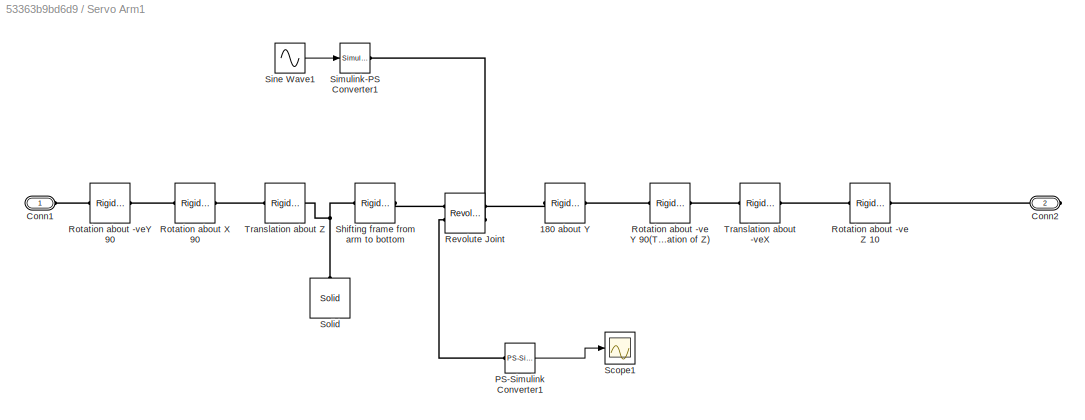
BLOCK [SubSystem] Servo Arm1
  Ports = [0, 0, 0, 0, 0, 1, 1]
  RequestExecContextInheritance = off
BLOCK [Reference] Servo Arm1/180 about Y  REF=sm_lib/Frames and
Transforms/Rigid
Transform
  BaseAlignAxisA = -Y
  BaseAlignAxisB = +X
  BlockFunction = simmechanics.library.frames_transforms.rigid_transform
  ClassName = RigidTransform
  FollAlignAxisA = +Z
  FollAlignAxisB = +Y
  LogSimulationData = off
  Ports = [0, 0, 0, 0, 0, 1, 1]
  RotationAngle = 180
  RotationAngleUnits = deg
  RotationArbitraryAxis = [0 0 1]
  RotationMatrix = [1 0 0; 0 1 0; 0 0 1]
  RotationMethod = StandardAxis
  RotationStandardAxis = +Z
  SourceBlock = sm_lib/Frames and\nTransforms/Rigid\nTransform
  SourceType = Rigid\nTransform
  TranslationCartesianOffset = [0 0 0]
  TranslationLengthUnit = m
  TranslationMethod = None
  TranslationROffset = 0
  TranslationROffsetUnits = m
  TranslationStandardAxis = +Z
  TranslationStandardOffset = 0
  TranslationThetaOffset = 0
  TranslationThetaOffsetUnits = deg
  TranslationZOffset = 0
  TranslationZOffsetUnits = m
BLOCK [PMIOPort] Servo Arm1/Conn1
  Port = 1
  Side = Left
BLOCK [PMIOPort] Servo Arm1/Conn2
  Port = 2
  Side = Right
BLOCK [Reference] Servo Arm1/PS-Simulink Converter1  REF=nesl_utility/PS-Simulink
Converter
  AffineConversion = off
  Frequencies = []
  LeftPortType = input
  PhysicalDomain = network_engine_domain
  Ports = [0, 1, 0, 0, 0, 1]
  PseudoPeriodic = off
  RightPortType = output
  SourceBlock = nesl_utility/PS-Simulink\nConverter
  SourceType = PS-Simulink\nConverter
  SubClassName = ps_output
  Unit = N*m
BLOCK [Reference] Servo Arm1/Revolute Joint  REF=sm_lib/Joints/Revolute Joint
  BlockFunction = simmechanics.library.joints.revolute_joint
  ClassName = RevoluteJoint
  CompositeWrenchDir = FollowerOnBase
  CompositeWrenchFrame = BaseFrame
  DampingCoefficient = 0
  DampingCoefficientUnits = N*m/(deg/s)
  EquilibriumPosition = 0
  EquilibriumPositionUnits = deg
  LogSimulationData = off
  MotionActuationMode = InputMotion
  Ports = [0, 0, 0, 0, 0, 2, 2]
  PositionTargetPriority = High
  PositionTargetSpecify = off
  PositionTargetValue = 0
  PositionTargetValueUnits = deg
  SenseAcceleration = off
  SenseConstraintForce = off
  SenseConstraintForceX = off
  SenseConstraintForceY = off
  SenseConstraintForceZ = off
  SenseConstraintTorque = off
  SenseConstraintTorqueX = off
  SenseConstraintTorqueY = off
  SenseConstraintTorqueZ = off
  SensePosition = off
  SenseTorqueForce = on
  SenseTotalForce = off
  SenseTotalForceX = off
  SenseTotalForceY = off
  SenseTotalForceZ = off
  SenseTotalTorque = off
  SenseTotalTorqueX = off
  SenseTotalTorqueY = off
  SenseTotalTorqueZ = off
  SenseVelocity = off
  SourceBlock = sm_lib/Joints/Revolute Joint
  SourceType = Revolute Joint
  SpringStiffness = 0
  SpringStiffnessUnits = N*m/deg
  TorqueActuationMode = ComputedTorque
  VelocityTargetPriority = High
  VelocityTargetSpecify = off
  VelocityTargetValue = 0
  VelocityTargetValueUnits = deg/s
BLOCK [Reference] Servo Arm1/Rotation about  X 90   REF=sm_lib/Frames and
Transforms/Rigid
Transform
  BaseAlignAxisA = -Y
  BaseAlignAxisB = +X
  BlockFunction = simmechanics.library.frames_transforms.rigid_transform
  ClassName = RigidTransform
  FollAlignAxisA = +Z
  FollAlignAxisB = +Y
  LogSimulationData = off
  Ports = [0, 0, 0, 0, 0, 1, 1]
  RotationAngle = 90
  RotationAngleUnits = deg
  RotationArbitraryAxis = [0 0 1]
  RotationMatrix = [1 0 0; 0 1 0; 0 0 1]
  RotationMethod = StandardAxis
  RotationStandardAxis = +X
  SourceBlock = sm_lib/Frames and\nTransforms/Rigid\nTransform
  SourceType = Rigid\nTransform
  TranslationCartesianOffset = [0 0 0]
  TranslationLengthUnit = cm
  TranslationMethod = None
  TranslationROffset = 0
  TranslationROffsetUnits = m
  TranslationStandardAxis = +Z
  TranslationStandardOffset = 1.745
  TranslationThetaOffset = 0
  TranslationThetaOffsetUnits = deg
  TranslationZOffset = 0
  TranslationZOffsetUnits = m
BLOCK [Reference] Servo Arm1/Rotation about -ve Y 90(To change orientation of Z)  REF=sm_lib/Frames and
Transforms/Rigid
Transform
  BaseAlignAxisA = -Y
  BaseAlignAxisB = +X
  BlockFunction = simmechanics.library.frames_transforms.rigid_transform
  ClassName = RigidTransform
  FollAlignAxisA = +Z
  FollAlignAxisB = +Y
  LogSimulationData = off
  Ports = [0, 0, 0, 0, 0, 1, 1]
  RotationAngle = 90
  RotationAngleUnits = deg
  RotationArbitraryAxis = [0 0 1]
  RotationMatrix = [1 0 0; 0 1 0; 0 0 1]
  RotationMethod = StandardAxis
  RotationStandardAxis = -Y
  SourceBlock = sm_lib/Frames and\nTransforms/Rigid\nTransform
  SourceType = Rigid\nTransform
  TranslationCartesianOffset = [0 0 0]
  TranslationLengthUnit = m
  TranslationMethod = None
  TranslationROffset = 0
  TranslationROffsetUnits = m
  TranslationStandardAxis = -X
  TranslationStandardOffset = 0.2
  TranslationThetaOffset = 0
  TranslationThetaOffsetUnits = deg
  TranslationZOffset = 0
  TranslationZOffsetUnits = m
BLOCK [Reference] Servo Arm1/Rotation about -ve Z 10  REF=sm_lib/Frames and
Transforms/Rigid
Transform
  BaseAlignAxisA = -Y
  BaseAlignAxisB = +X
  BlockFunction = simmechanics.library.frames_transforms.rigid_transform
  ClassName = RigidTransform
  FollAlignAxisA = +Z
  FollAlignAxisB = +Y
  LogSimulationData = off
  Ports = [0, 0, 0, 0, 0, 1, 1]
  RotationAngle = 10
  RotationAngleUnits = deg
  RotationArbitraryAxis = [0 0 1]
  RotationMatrix = [1 0 0; 0 1 0; 0 0 1]
  RotationMethod = StandardAxis
  RotationStandardAxis = -Z
  SourceBlock = sm_lib/Frames and\nTransforms/Rigid\nTransform
  SourceType = Rigid\nTransform
  TranslationCartesianOffset = [0 0 0]
  TranslationLengthUnit = m
  TranslationMethod = None
  TranslationROffset = 0
  TranslationROffsetUnits = m
  TranslationStandardAxis = +Z
  TranslationStandardOffset = 0
  TranslationThetaOffset = 0
  TranslationThetaOffsetUnits = deg
  TranslationZOffset = 0
  TranslationZOffsetUnits = m
BLOCK [Reference] Servo Arm1/Rotation about -veY 90  REF=sm_lib/Frames and
Transforms/Rigid
Transform
  BaseAlignAxisA = -Y
  BaseAlignAxisB = +X
  BlockFunction = simmechanics.library.frames_transforms.rigid_transform
  ClassName = RigidTransform
  FollAlignAxisA = +Z
  FollAlignAxisB = +Y
  LogSimulationData = off
  Ports = [0, 0, 0, 0, 0, 1, 1]
  RotationAngle = 90
  RotationAngleUnits = deg
  RotationArbitraryAxis = [0 0 1]
  RotationMatrix = [1 0 0; 0 1 0; 0 0 1]
  RotationMethod = StandardAxis
  RotationStandardAxis = -Y
  SourceBlock = sm_lib/Frames and\nTransforms/Rigid\nTransform
  SourceType = Rigid\nTransform
  TranslationCartesianOffset = [0 0 0]
  TranslationLengthUnit = cm
  TranslationMethod = None
  TranslationROffset = 0
  TranslationROffsetUnits = m
  TranslationStandardAxis = +Z
  TranslationStandardOffset = 1.745
  TranslationThetaOffset = 0
  TranslationThetaOffsetUnits = deg
  TranslationZOffset = 0
  TranslationZOffsetUnits = m
BLOCK [Scope] Servo Arm1/Scope1
  Floating = off
  NumInputPorts = 1
  Ports = [1]
  SaveName = ScopeData1
BLOCK [Reference] Servo Arm1/Shifting frame from arm to bottom  REF=sm_lib/Frames and
Transforms/Rigid
Transform
  BaseAlignAxisA = -Y
  BaseAlignAxisB = +X
  BlockFunction = simmechanics.library.frames_transforms.rigid_transform
  ClassName = RigidTransform
  FollAlignAxisA = +Z
  FollAlignAxisB = +Y
  LogSimulationData = off
  Ports = [0, 0, 0, 0, 0, 1, 1]
  RotationAngle = 90
  RotationAngleUnits = deg
  RotationArbitraryAxis = [0 0 1]
  RotationMatrix = [1 0 0; 0 1 0; 0 0 1]
  RotationMethod = StandardAxis
  RotationStandardAxis = +X
  SourceBlock = sm_lib/Frames and\nTransforms/Rigid\nTransform
  SourceType = Rigid\nTransform
  TranslationCartesianOffset = [0 0 0]
  TranslationLengthUnit = cm
  TranslationMethod = StandardAxis
  TranslationROffset = 0
  TranslationROffsetUnits = m
  TranslationStandardAxis = -Z
  TranslationStandardOffset = 1.745
  TranslationThetaOffset = 0
  TranslationThetaOffsetUnits = deg
  TranslationZOffset = 0
  TranslationZOffsetUnits = m
BLOCK [Reference] Servo Arm1/Simulink-PS Converter1  REF=nesl_utility/Simulink-PS
Converter
  AffineConversion = off
  Frequencies = []
  InputFilterTimeConstant = 0.01
  InputFiltering = on
  LeftPortType = input
  NoiseDistribution = none
  NoiseParameters = []
  PhysicalDomain = network_engine_domain
  Ports = [1, 0, 0, 0, 0, 0, 1]
  PseudoPeriodic = off
  RightPortType = output
  SimscapeFilterOrder = 2
  SourceBlock = nesl_utility/Simulink-PS\nConverter
  SourceType = Simulink-PS\nConverter
  SubClassName = ps_input
  UdotUserProvided = 1
  Unit = deg
BLOCK [Sin] Servo Arm1/Sine Wave1
  Amplitude = 30
  Frequency = 5
  Ports = [0, 1]
  SampleTime = 0
BLOCK [Reference] Servo Arm1/Solid  REF=sm_lib/Body Elements/Solid
  BlockFunction = simmechanics.library.body_elements.solid
  BrickDimensionUnits = m
  BrickDimensions = [1 1 1]
  CenterOfMass = [0 0 0]
  CenterOfMassUnits = m
  ClassName = Solid
  CylinderLength = 3.49
  CylinderLengthUnits = cm
  CylinderRadius = 3
  CylinderRadiusUnits = mm
  Density = 1000
  DensityBased = on
  DensityUnits = kg/(m^3)
  EllipsoidRadii = [1 1 1]
  EllipsoidRadiiUnits = m
  ExtGeomFileType = STL
  ExtGeomFileUnits = m
  ExtrusionCrossSection = [1 1; -1 1; -1 -1; 1 -1]
  ExtrusionCrossSectionUnits = m
  ExtrusionLength = 1
  ExtrusionLengthUnits = m
  GeometryShape = Cylinder
  GraphicAmbientColor = [0.15 0.15 0.15 1.0]
  GraphicDiffuseColor = [0.5 0.5 0.5]
  GraphicEmissiveColor = [0.0 0.0 0.0 1.0]
  GraphicOpacity = 1.0
  GraphicShininess = 75
  GraphicSpecularColor = [0.5 0.5 0.5 1.0]
  GraphicType = FromGeometry
  GraphicVisPropType = SimpleVisualProperties
  InertiaType = CalculateFromGeometry
  LogSimulationData = off
  MarkerShape = Sphere
  MarkerSize = 10
  MarkerSizeUnits = m
  Mass = 1
  MassUnits = kg
  MomentsOfInertia = [1 1 1]
  MomentsOfInertiaUnits = kg*m^2
  PolygonNumSides = 3
  PolygonOuterRadius = 1
  PolygonOuterRadiusUnits = m
  Ports = [0, 0, 0, 0, 0, 0, 1]
  ProductsOfInertia = [0 0 0]
  ProductsOfInertiaUnits = kg*m^2
  RectangleSize = [1 1]
  RectangleSizeUnits = m
  RevolutionAngle = 180
  RevolutionAngleUnits = deg
  RevolutionCrossSection = [1 1; 1 -1; 2 -1; 2 1]
  RevolutionCrossSectionUnits = m
  RevolutionExtent = Full
  SourceBlock = sm_lib/Body Elements/Solid
  SourceType = Solid
  SphereRadius = 1
  SphereRadiusUnits = m
BLOCK [Reference] Servo Arm1/Translation about -veX  REF=sm_lib/Frames and
Transforms/Rigid
Transform
  BaseAlignAxisA = -Y
  BaseAlignAxisB = +X
  BlockFunction = simmechanics.library.frames_transforms.rigid_transform
  ClassName = RigidTransform
  FollAlignAxisA = +Z
  FollAlignAxisB = +Y
  LogSimulationData = off
  Ports = [0, 0, 0, 0, 0, 1, 1]
  RotationAngle = 10
  RotationAngleUnits = deg
  RotationArbitraryAxis = [0 0 1]
  RotationMatrix = [1 0 0; 0 1 0; 0 0 1]
  RotationMethod = None
  RotationStandardAxis = -Z
  SourceBlock = sm_lib/Frames and\nTransforms/Rigid\nTransform
  SourceType = Rigid\nTransform
  TranslationCartesianOffset = [0 0 0]
  TranslationLengthUnit = m
  TranslationMethod = StandardAxis
  TranslationROffset = 0
  TranslationROffsetUnits = m
  TranslationStandardAxis = -X
  TranslationStandardOffset = 0.2
  TranslationThetaOffset = 0
  TranslationThetaOffsetUnits = deg
  TranslationZOffset = 0
  TranslationZOffsetUnits = m
BLOCK [Reference] Servo Arm1/Translation about Z  REF=sm_lib/Frames and
Transforms/Rigid
Transform
  BaseAlignAxisA = -Y
  BaseAlignAxisB = +X
  BlockFunction = simmechanics.library.frames_transforms.rigid_transform
  ClassName = RigidTransform
  FollAlignAxisA = +Z
  FollAlignAxisB = +Y
  LogSimulationData = off
  Ports = [0, 0, 0, 0, 0, 1, 1]
  RotationAngle = 90
  RotationAngleUnits = deg
  RotationArbitraryAxis = [0 0 1]
  RotationMatrix = [1 0 0; 0 1 0; 0 0 1]
  RotationMethod = None
  RotationStandardAxis = -X
  SourceBlock = sm_lib/Frames and\nTransforms/Rigid\nTransform
  SourceType = Rigid\nTransform
  TranslationCartesianOffset = [0 0 0]
  TranslationLengthUnit = cm
  TranslationMethod = StandardAxis
  TranslationROffset = 0
  TranslationROffsetUnits = m
  TranslationStandardAxis = +Z
  TranslationStandardOffset = 1.745
  TranslationThetaOffset = 0
  TranslationThetaOffsetUnits = deg
  TranslationZOffset = 0
  TranslationZOffsetUnits = m
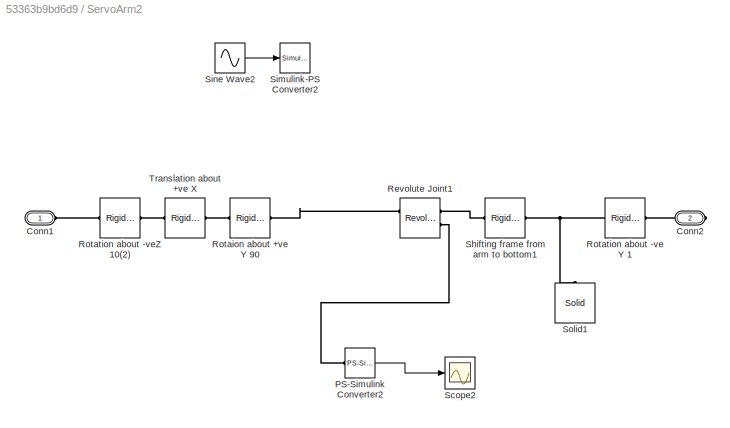
BLOCK [SubSystem] ServoArm2
  Ports = [0, 0, 0, 0, 0, 1, 1]
  RequestExecContextInheritance = off
BLOCK [PMIOPort] ServoArm2/Conn1
  Port = 1
  Side = Left
BLOCK [PMIOPort] ServoArm2/Conn2
  Port = 2
  Side = Right
BLOCK [Reference] ServoArm2/PS-Simulink Converter2  REF=nesl_utility/PS-Simulink
Converter
  AffineConversion = off
  Frequencies = []
  LeftPortType = input
  PhysicalDomain = network_engine_domain
  Ports = [0, 1, 0, 0, 0, 1]
  PseudoPeriodic = off
  RightPortType = output
  SourceBlock = nesl_utility/PS-Simulink\nConverter
  SourceType = PS-Simulink\nConverter
  SubClassName = ps_output
  Unit = N*m
BLOCK [Reference] ServoArm2/Revolute Joint1  REF=sm_lib/Joints/Revolute Joint
  BlockFunction = simmechanics.library.joints.revolute_joint
  ClassName = RevoluteJoint
  CompositeWrenchDir = FollowerOnBase
  CompositeWrenchFrame = BaseFrame
  DampingCoefficient = 0
  DampingCoefficientUnits = N*m/(deg/s)
  EquilibriumPosition = 0
  EquilibriumPositionUnits = deg
  LogSimulationData = off
  MotionActuationMode = InputMotion
  Ports = [0, 0, 0, 0, 0, 2, 2]
  PositionTargetPriority = High
  PositionTargetSpecify = off
  PositionTargetValue = 0
  PositionTargetValueUnits = deg
  SenseAcceleration = off
  SenseConstraintForce = off
  SenseConstraintForceX = off
  SenseConstraintForceY = off
  SenseConstraintForceZ = off
  SenseConstraintTorque = off
  SenseConstraintTorqueX = off
  SenseConstraintTorqueY = off
  SenseConstraintTorqueZ = off
  SensePosition = off
  SenseTorqueForce = on
  SenseTotalForce = off
  SenseTotalForceX = off
  SenseTotalForceY = off
  SenseTotalForceZ = off
  SenseTotalTorque = off
  SenseTotalTorqueX = off
  SenseTotalTorqueY = off
  SenseTotalTorqueZ = off
  SenseVelocity = off
  SourceBlock = sm_lib/Joints/Revolute Joint
  SourceType = Revolute Joint
  SpringStiffness = 0
  SpringStiffnessUnits = N*m/deg
  TorqueActuationMode = ComputedTorque
  VelocityTargetPriority = High
  VelocityTargetSpecify = off
  VelocityTargetValue = 0
  VelocityTargetValueUnits = deg/s
BLOCK [Reference] ServoArm2/Rotaion about +ve Y 90  REF=sm_lib/Frames and
Transforms/Rigid
Transform
  BaseAlignAxisA = -Y
  BaseAlignAxisB = +X
  BlockFunction = simmechanics.library.frames_transforms.rigid_transform
  ClassName = RigidTransform
  FollAlignAxisA = +Z
  FollAlignAxisB = +Y
  LogSimulationData = off
  Ports = [0, 0, 0, 0, 0, 1, 1]
  RotationAngle = 90
  RotationAngleUnits = deg
  RotationArbitraryAxis = [0 0 1]
  RotationMatrix = [1 0 0; 0 1 0; 0 0 1]
  RotationMethod = StandardAxis
  RotationStandardAxis = +Y
  SourceBlock = sm_lib/Frames and\nTransforms/Rigid\nTransform
  SourceType = Rigid\nTransform
  TranslationCartesianOffset = [0 0 0]
  TranslationLengthUnit = cm
  TranslationMethod = None
  TranslationROffset = 0
  TranslationROffsetUnits = m
  TranslationStandardAxis = +X
  TranslationStandardOffset = 20
  TranslationThetaOffset = 0
  TranslationThetaOffsetUnits = deg
  TranslationZOffset = 0
  TranslationZOffsetUnits = m
BLOCK [Reference] ServoArm2/Rotation about -ve Y 1  REF=sm_lib/Frames and
Transforms/Rigid
Transform
  BaseAlignAxisA = -Y
  BaseAlignAxisB = +X
  BlockFunction = simmechanics.library.frames_transforms.rigid_transform
  ClassName = RigidTransform
  FollAlignAxisA = +Z
  FollAlignAxisB = +Y
  LogSimulationData = off
  Ports = [0, 0, 0, 0, 0, 1, 1]
  RotationAngle = 90
  RotationAngleUnits = deg
  RotationArbitraryAxis = [0 0 1]
  RotationMatrix = [1 0 0; 0 1 0; 0 0 1]
  RotationMethod = StandardAxis
  RotationStandardAxis = +X
  SourceBlock = sm_lib/Frames and\nTransforms/Rigid\nTransform
  SourceType = Rigid\nTransform
  TranslationCartesianOffset = [0 0 0]
  TranslationLengthUnit = cm
  TranslationMethod = StandardAxis
  TranslationROffset = 0
  TranslationROffsetUnits = m
  TranslationStandardAxis = +Z
  TranslationStandardOffset = 1.745
  TranslationThetaOffset = 0
  TranslationThetaOffsetUnits = deg
  TranslationZOffset = 0
  TranslationZOffsetUnits = m
BLOCK [Reference] ServoArm2/Rotation about -veZ 10(2)  REF=sm_lib/Frames and
Transforms/Rigid
Transform
  BaseAlignAxisA = -Y
  BaseAlignAxisB = +X
  BlockFunction = simmechanics.library.frames_transforms.rigid_transform
  ClassName = RigidTransform
  FollAlignAxisA = +Z
  FollAlignAxisB = +Y
  LogSimulationData = off
  Ports = [0, 0, 0, 0, 0, 1, 1]
  RotationAngle = 10
  RotationAngleUnits = deg
  RotationArbitraryAxis = [0 0 1]
  RotationMatrix = [1 0 0; 0 1 0; 0 0 1]
  RotationMethod = StandardAxis
  RotationStandardAxis = -Z
  SourceBlock = sm_lib/Frames and\nTransforms/Rigid\nTransform
  SourceType = Rigid\nTransform
  TranslationCartesianOffset = [0 0 0]
  TranslationLengthUnit = cm
  TranslationMethod = None
  TranslationROffset = 0
  TranslationROffsetUnits = m
  TranslationStandardAxis = +X
  TranslationStandardOffset = 20
  TranslationThetaOffset = 0
  TranslationThetaOffsetUnits = deg
  TranslationZOffset = 0
  TranslationZOffsetUnits = m
BLOCK [Scope] ServoArm2/Scope2
  Floating = off
  NumInputPorts = 1
  Ports = [1]
BLOCK [Reference] ServoArm2/Shifting frame from arm to bottom1  REF=sm_lib/Frames and
Transforms/Rigid
Transform
  BaseAlignAxisA = -Y
  BaseAlignAxisB = +X
  BlockFunction = simmechanics.library.frames_transforms.rigid_transform
  ClassName = RigidTransform
  FollAlignAxisA = +Z
  FollAlignAxisB = +Y
  LogSimulationData = off
  Ports = [0, 0, 0, 0, 0, 1, 1]
  RotationAngle = 90
  RotationAngleUnits = deg
  RotationArbitraryAxis = [0 0 1]
  RotationMatrix = [1 0 0; 0 1 0; 0 0 1]
  RotationMethod = StandardAxis
  RotationStandardAxis = +X
  SourceBlock = sm_lib/Frames and\nTransforms/Rigid\nTransform
  SourceType = Rigid\nTransform
  TranslationCartesianOffset = [0 0 0]
  TranslationLengthUnit = cm
  TranslationMethod = StandardAxis
  TranslationROffset = 0
  TranslationROffsetUnits = m
  TranslationStandardAxis = -Z
  TranslationStandardOffset = 1.745
  TranslationThetaOffset = 0
  TranslationThetaOffsetUnits = deg
  TranslationZOffset = 0
  TranslationZOffsetUnits = m
BLOCK [Reference] ServoArm2/Simulink-PS Converter2  REF=nesl_utility/Simulink-PS
Converter
  AffineConversion = off
  Frequencies = []
  InputFilterTimeConstant = 0.01
  InputFiltering = on
  LeftPortType = input
  NoiseDistribution = none
  NoiseParameters = []
  PhysicalDomain = network_engine_domain
  Ports = [1, 0, 0, 0, 0, 0, 1]
  PseudoPeriodic = off
  RightPortType = output
  SimscapeFilterOrder = 2
  SourceBlock = nesl_utility/Simulink-PS\nConverter
  SourceType = Simulink-PS\nConverter
  SubClassName = ps_input
  UdotUserProvided = 1
  Unit = deg
BLOCK [Sin] ServoArm2/Sine Wave2
  Amplitude = 5
  Frequency = 10.0528
  Ports = [0, 1]
  SampleTime = 0
BLOCK [Reference] ServoArm2/Solid1  REF=sm_lib/Body Elements/Solid
  BlockFunction = simmechanics.library.body_elements.solid
  BrickDimensionUnits = m
  BrickDimensions = [1 1 1]
  CenterOfMass = [0 0 0]
  CenterOfMassUnits = m
  ClassName = Solid
  CylinderLength = 3.49
  CylinderLengthUnits = cm
  CylinderRadius = 3
  CylinderRadiusUnits = mm
  Density = 1000
  DensityBased = on
  DensityUnits = kg/(m^3)
  EllipsoidRadii = [1 1 1]
  EllipsoidRadiiUnits = m
  ExtGeomFileType = STL
  ExtGeomFileUnits = m
  ExtrusionCrossSection = [1 1; -1 1; -1 -1; 1 -1]
  ExtrusionCrossSectionUnits = m
  ExtrusionLength = 1
  ExtrusionLengthUnits = m
  GeometryShape = Cylinder
  GraphicAmbientColor = [0.15 0.15 0.15 1.0]
  GraphicDiffuseColor = [0.5 0.5 0.5]
  GraphicEmissiveColor = [0.0 0.0 0.0 1.0]
  GraphicOpacity = 1.0
  GraphicShininess = 75
  GraphicSpecularColor = [0.5 0.5 0.5 1.0]
  GraphicType = FromGeometry
  GraphicVisPropType = SimpleVisualProperties
  InertiaType = CalculateFromGeometry
  LogSimulationData = off
  MarkerShape = Sphere
  MarkerSize = 10
  MarkerSizeUnits = m
  Mass = 1
  MassUnits = kg
  MomentsOfInertia = [1 1 1]
  MomentsOfInertiaUnits = kg*m^2
  PolygonNumSides = 3
  PolygonOuterRadius = 1
  PolygonOuterRadiusUnits = m
  Ports = [0, 0, 0, 0, 0, 0, 1]
  ProductsOfInertia = [0 0 0]
  ProductsOfInertiaUnits = kg*m^2
  RectangleSize = [1 1]
  RectangleSizeUnits = m
  RevolutionAngle = 180
  RevolutionAngleUnits = deg
  RevolutionCrossSection = [1 1; 1 -1; 2 -1; 2 1]
  RevolutionCrossSectionUnits = m
  RevolutionExtent = Full
  SourceBlock = sm_lib/Body Elements/Solid
  SourceType = Solid
  SphereRadius = 1
  SphereRadiusUnits = m
BLOCK [Reference] ServoArm2/Translation about +ve X  REF=sm_lib/Frames and
Transforms/Rigid
Transform
  BaseAlignAxisA = -Y
  BaseAlignAxisB = +X
  BlockFunction = simmechanics.library.frames_transforms.rigid_transform
  ClassName = RigidTransform
  FollAlignAxisA = +Z
  FollAlignAxisB = +Y
  LogSimulationData = off
  Ports = [0, 0, 0, 0, 0, 1, 1]
  RotationAngle = 10
  RotationAngleUnits = deg
  RotationArbitraryAxis = [0 0 1]
  RotationMatrix = [1 0 0; 0 1 0; 0 0 1]
  RotationMethod = None
  RotationStandardAxis = -Z
  SourceBlock = sm_lib/Frames and\nTransforms/Rigid\nTransform
  SourceType = Rigid\nTransform
  TranslationCartesianOffset = [0 0 0]
  TranslationLengthUnit = cm
  TranslationMethod = StandardAxis
  TranslationROffset = 0
  TranslationROffsetUnits = m
  TranslationStandardAxis = +X
  TranslationStandardOffset = 20
  TranslationThetaOffset = 0
  TranslationThetaOffsetUnits = deg
  TranslationZOffset = 0
  TranslationZOffsetUnits = m
BLOCK [Reference] Simulink-PS Converter1  REF=nesl_utility/Simulink-PS
Converter
  AffineConversion = off
  Frequencies = []
  InputFilterTimeConstant = 0.01
  InputFiltering = on
  LeftPortType = input
  NoiseDistribution = none
  NoiseParameters = []
  PhysicalDomain = network_engine_domain
  Ports = [1, 0, 0, 0, 0, 0, 1]
  PseudoPeriodic = off
  RightPortType = output
  SimscapeFilterOrder = 2
  SourceBlock = nesl_utility/Simulink-PS\nConverter
  SourceType = Simulink-PS\nConverter
  SubClassName = ps_input
  UdotUserProvided = 1
  Unit = m
BLOCK [Sin] Sine Wave1
  Amplitude = 0.0001
  Frequency = 2.5132
  Ports = [0, 1]
  SampleTime = 0
BLOCK [Reference] Solid2  REF=sm_lib/Body Elements/Solid
  BlockFunction = simmechanics.library.body_elements.solid
  BrickDimensionUnits = m
  BrickDimensions = [1 1 1]
  CenterOfMass = [0 0 0]
  CenterOfMassUnits = m
  ClassName = Solid
  CylinderLength = 1
  CylinderLengthUnits = cm
  CylinderRadius = 20
  CylinderRadiusUnits = cm
  Density = 1000
  DensityBased = on
  DensityUnits = kg/(m^3)
  EllipsoidRadii = [1 1 1]
  EllipsoidRadiiUnits = m
  ExtGeomFileType = STL
  ExtGeomFileUnits = m
  ExtrusionCrossSection = [1 1; -1 1; -1 -1; 1 -1]
  ExtrusionCrossSectionUnits = m
  ExtrusionLength = 1
  ExtrusionLengthUnits = m
  GeometryShape = Cylinder
  GraphicAmbientColor = [0.15 0.15 0.15 1.0]
  GraphicDiffuseColor = [0.8 0.0 0.0]
  GraphicEmissiveColor = [0.0 0.0 0.0 1.0]
  GraphicOpacity = 1.0
  GraphicShininess = 75
  GraphicSpecularColor = [0.5 0.5 0.5 1.0]
  GraphicType = FromGeometry
  GraphicVisPropType = SimpleVisualProperties
  InertiaType = CalculateFromGeometry
  LogSimulationData = off
  MarkerShape = Sphere
  MarkerSize = 10
  MarkerSizeUnits = m
  Mass = 1
  MassUnits = kg
  MomentsOfInertia = [1 1 1]
  MomentsOfInertiaUnits = kg*m^2
  PolygonNumSides = 3
  PolygonOuterRadius = 1
  PolygonOuterRadiusUnits = m
  Ports = [0, 0, 0, 0, 0, 0, 1]
  ProductsOfInertia = [0 0 0]
  ProductsOfInertiaUnits = kg*m^2
  RectangleSize = [1 1]
  RectangleSizeUnits = m
  RevolutionAngle = 180
  RevolutionAngleUnits = deg
  RevolutionCrossSection = [1 1; 1 -1; 2 -1; 2 1]
  RevolutionCrossSectionUnits = m
  RevolutionExtent = Full
  SourceBlock = sm_lib/Body Elements/Solid
  SourceType = Solid
  SphereRadius = 1
  SphereRadiusUnits = m
BLOCK [Reference] Solver Config  REF=nesl_utility/Solver
Configuration
  AbsTol = 1e-06
  Accelerate = off
  AutomaticFiltering = on
  DelaysMemoryBudget = 1024
  DoDC = off
  DoFixedCost = off
  EnableSwitchedLinearOptims = on
  FilteringTimeConstant = 0.001
  FrequencyDomain = off
  Harmonics = []
  LeftPortType = input
  LinearAlgebra = Sparse
  LocalSolverChoice = NE_BACKWARD_EULER_ADVANCER
  LocalSolverSampleTime = .001
  MaxModeIter = 2
  MaxNonlinIter = 3
  MinStep = 1e-09
  NumHomotopyIterations = 100
  PhysicalDomain = network_engine_domain
  Ports = [0, 0, 0, 0, 0, 0, 1]
  Profile = off
  RelTol = 0.001
  ResidualTolerance = 1e-9
  RevertToSquareIcSolve = off
  RightPortType = generic
  SimulateNoise = off
  SourceBlock = nesl_utility/Solver\nConfiguration
  SourceType = Solver\nConfiguration
  SubClassName = solver
  ToWorkspace = off
  Tones = []
  UseCCode = off
  UseLocalSampling = off
  UseLocalSolver = off
BLOCK [Reference] Translation about +ve X  REF=sm_lib/Frames and
Transforms/Rigid
Transform
  BaseAlignAxisA = -Y
  BaseAlignAxisB = +X
  BlockFunction = simmechanics.library.frames_transforms.rigid_transform
  ClassName = RigidTransform
  FollAlignAxisA = +Z
  FollAlignAxisB = +Y
  LogSimulationData = off
  Ports = [0, 0, 0, 0, 0, 1, 1]
  RotationAngle = 10
  RotationAngleUnits = deg
  RotationArbitraryAxis = [0 0 1]
  RotationMatrix = [1 0 0; 0 1 0; 0 0 1]
  RotationMethod = None
  RotationStandardAxis = -Z
  SourceBlock = sm_lib/Frames and\nTransforms/Rigid\nTransform
  SourceType = Rigid\nTransform
  TranslationCartesianOffset = [0 0 0]
  TranslationLengthUnit = cm
  TranslationMethod = StandardAxis
  TranslationROffset = 0
  TranslationROffsetUnits = m
  TranslationStandardAxis = +X
  TranslationStandardOffset = 20
  TranslationThetaOffset = 0
  TranslationThetaOffsetUnits = deg
  TranslationZOffset = 0
  TranslationZOffsetUnits = m
BLOCK [Reference] Translation about -veX  REF=sm_lib/Frames and
Transforms/Rigid
Transform
  BaseAlignAxisA = -Y
  BaseAlignAxisB = +X
  BlockFunction = simmechanics.library.frames_transforms.rigid_transform
  ClassName = RigidTransform
  FollAlignAxisA = +Z
  FollAlignAxisB = +Y
  LogSimulationData = off
  Ports = [0, 0, 0, 0, 0, 1, 1]
  RotationAngle = 10
  RotationAngleUnits = deg
  RotationArbitraryAxis = [0 0 1]
  RotationMatrix = [1 0 0; 0 1 0; 0 0 1]
  RotationMethod = None
  RotationStandardAxis = -Z
  SourceBlock = sm_lib/Frames and\nTransforms/Rigid\nTransform
  SourceType = Rigid\nTransform
  TranslationCartesianOffset = [0 0 0]
  TranslationLengthUnit = m
  TranslationMethod = StandardAxis
  TranslationROffset = 0
  TranslationROffsetUnits = m
  TranslationStandardAxis = -Z
  TranslationStandardOffset = 0.2
  TranslationThetaOffset = 0
  TranslationThetaOffsetUnits = deg
  TranslationZOffset = 0
  TranslationZOffsetUnits = m
BLOCK [Reference] Weld Joint  REF=sm_lib/Joints/Weld Joint
  BlockFunction = simmechanics.library.joints.weld_joint
  ClassName = WeldJoint
  CompositeWrenchDir = FollowerOnBase
  CompositeWrenchFrame = BaseFrame
  LogSimulationData = off
  Ports = [0, 0, 0, 0, 0, 1, 1]
  SenseConstraintForce = off
  SenseConstraintForceX = off
  SenseConstraintForceY = off
  SenseConstraintForceZ = off
  SenseConstraintTorque = off
  SenseConstraintTorqueX = off
  SenseConstraintTorqueY = off
  SenseConstraintTorqueZ = off
  SenseTotalForce = off
  SenseTotalForceX = off
  SenseTotalForceY = off
  SenseTotalForceZ = off
  SenseTotalTorque = off
  SenseTotalTorqueX = off
  SenseTotalTorqueY = off
  SenseTotalTorqueZ = off
  SourceBlock = sm_lib/Joints/Weld Joint
  SourceType = Weld Joint
BLOCK [Reference] Weld Joint1  REF=sm_lib/Joints/Weld Joint
  BlockFunction = simmechanics.library.joints.weld_joint
  ClassName = WeldJoint
  CompositeWrenchDir = FollowerOnBase
  CompositeWrenchFrame = BaseFrame
  LogSimulationData = off
  Ports = [0, 0, 0, 0, 0, 1, 1]
  SenseConstraintForce = off
  SenseConstraintForceX = off
  SenseConstraintForceY = off
  SenseConstraintForceZ = off
  SenseConstraintTorque = off
  SenseConstraintTorqueX = off
  SenseConstraintTorqueY = off
  SenseConstraintTorqueZ = off
  SenseTotalForce = off
  SenseTotalForceX = off
  SenseTotalForceY = off
  SenseTotalForceZ = off
  SenseTotalTorque = off
  SenseTotalTorqueX = off
  SenseTotalTorqueY = off
  SenseTotalTorqueZ = off
  SourceBlock = sm_lib/Joints/Weld Joint
  SourceType = Weld Joint
BLOCK [Reference] World Frame  REF=sm_lib/Frames and
Transforms/World Frame
  BlockFunction = simmechanics.library.frames_transforms.world_frame
  ClassName = WorldFrame
  LogSimulationData = off
  Ports = [0, 0, 0, 0, 0, 0, 1]
  SourceBlock = sm_lib/Frames and\nTransforms/World Frame
  SourceType = World Frame
LINE Servo Arm1/PS-Simulink Converter1:1 -> Servo Arm1/Scope1:1
LINE Servo Arm1/Sine Wave1:1 -> Servo Arm1/Simulink-PS Converter1:1
LINE ServoArm2/PS-Simulink Converter2:1 -> ServoArm2/Scope2:1
LINE ServoArm2/Sine Wave2:1 -> ServoArm2/Simulink-PS Converter2:1
LINE Sine Wave1:1 -> Simulink-PS Converter1:1
PLINE Constant Velocity Joint1:LConn1 -- Leg 1:LConn1
PLINE Constant Velocity Joint:LConn1 -- Servo Arm1:LConn1
PLINE Constant Velocity Joint:RConn1 -- Leg 1:RConn1
PLINE Leg 1/Conn1:RConn1 -- Leg 1/Upeer End:RConn1
PLINE Leg 1/Conn2:RConn1 -- Leg 1/Lower End:RConn1
PNET net1: Leg 1/LEG1:RConn1 -- Leg 1/Lower End:LConn1 -- Leg 1/Upeer End:LConn1
PLINE Leg 2/Conn1:RConn1 -- Leg 2/Rigid Transform2:RConn1
PLINE Leg 2/Conn2:RConn1 -- Leg 2/Rigid Transform3:RConn1
PNET net2: Leg 2/Rigid Transform2:LConn1 -- Leg 2/Rigid Transform3:LConn1 -- Leg 2/Solid1:RConn1
PLINE Leg 2:LConn1 -- Revolute Joint1:RConn1
PNET net3: Leg to platform/Arm on top:RConn1 -- Leg to platform/Translation from arm cg to end:LConn1 -- Leg to platform/Translation from arm cg to other end:LConn1
PLINE Leg to platform/Conn1:RConn1 -- Leg to platform/Translation from arm cg to other end:RConn1
PLINE Leg to platform/Conn2:RConn1 -- Leg to platform/Translation from arm cg to end:RConn1
PNET net4: Mechanism Configuration:RConn1 -- Servo Arm1:RConn1 -- ServoArm2:LConn1 -- Solid2:RConn1 -- Solver Config:RConn1 -- World Frame:RConn1
PLINE Platform to leg 1/Conn1:RConn1 -- Platform to leg 1/Rigid Transform1:RConn1
PLINE Platform to leg 1/Conn4:RConn1 -- Platform to leg 1/Rigid Transform:LConn1
PLINE Platform to leg 1/Rigid Transform1:LConn1 -- Platform to leg 1/Rigid Transform:RConn1
PLINE Platform to leg 2/Conn1:RConn1 -- Platform to leg 2/Rigid Transform3:RConn1
PLINE Platform to leg 2/Conn2:RConn1 -- Platform to leg 2/Rigid Transform2:LConn1
PLINE Platform to leg 2/Rigid Transform2:RConn1 -- Platform to leg 2/Rigid Transform3:LConn1
PLINE Platform to leg 3/Conn1:RConn1 -- Platform to leg 3/Rigid Transform1:RConn1
PLINE Platform to leg 3/Conn4:RConn1 -- Platform to leg 3/Rigid Transform:LConn1
PLINE Platform to leg 3/Rigid Transform1:LConn1 -- Platform to leg 3/Rigid Transform:RConn1
PLINE Platform to leg 4(1)/Conn1:RConn1 -- Platform to leg 4(1)/Rigid Transform1:RConn1
PLINE Platform to leg 4(1)/Conn4:RConn1 -- Platform to leg 4(1)/Rigid Transform:LConn1
PLINE Platform to leg 4(1)/Rigid Transform1:LConn1 -- Platform to leg 4(1)/Rigid Transform:RConn1
PLINE Platform to leg 4/Conn1:RConn1 -- Platform to leg 4/Rigid Transform1:RConn1
PLINE Platform to leg 4/Conn4:RConn1 -- Platform to leg 4/Rigid Transform:LConn1
PLINE Platform to leg 4/Rigid Transform1:LConn1 -- Platform to leg 4/Rigid Transform:RConn1
PLINE Platform to leg 5/Conn1:RConn1 -- Platform to leg 5/Rigid Transform1:RConn1
PLINE Platform to leg 5/Conn4:RConn1 -- Platform to leg 5/Rigid Transform:LConn1
PLINE Platform to leg 5/Rigid Transform1:LConn1 -- Platform to leg 5/Rigid Transform:RConn1
PLINE Platform to leg 6/Conn1:RConn1 -- Platform to leg 6/Rigid Transform1:RConn1
PLINE Platform to leg 6/Conn4:RConn1 -- Platform to leg 6/Rigid Transform:LConn1
PLINE Platform to leg 6/Rigid Transform1:LConn1 -- Platform to leg 6/Rigid Transform:RConn1
PLINE Revolute Joint1:LConn1 -- ServoArm2:RConn1
PLINE Servo Arm1/180 about Y:LConn1 -- Servo Arm1/Rotation about -ve Y 90(To change orientation of Z):RConn1
PLINE Servo Arm1/180 about Y:RConn1 -- Servo Arm1/Revolute Joint:LConn1
PLINE Servo Arm1/Conn1:RConn1 -- Servo Arm1/Rotation about -veY 90:RConn1
PLINE Servo Arm1/Conn2:RConn1 -- Servo Arm1/Rotation about -ve Z 10:LConn1
PLINE Servo Arm1/PS-Simulink Converter1:LConn1 -- Servo Arm1/Revolute Joint:RConn2
PLINE Servo Arm1/Revolute Joint:LConn2 -- Servo Arm1/Simulink-PS Converter1:RConn1
PLINE Servo Arm1/Revolute Joint:RConn1 -- Servo Arm1/Shifting frame from arm to bottom:RConn1
PLINE Servo Arm1/Rotation about  X 90 :LConn1 -- Servo Arm1/Translation about Z:RConn1
PLINE Servo Arm1/Rotation about  X 90 :RConn1 -- Servo Arm1/Rotation about -veY 90:LConn1
PLINE Servo Arm1/Rotation about -ve Y 90(To change orientation of Z):LConn1 -- Servo Arm1/Translation about -veX:RConn1
PLINE Servo Arm1/Rotation about -ve Z 10:RConn1 -- Servo Arm1/Translation about -veX:LConn1
PNET net5: Servo Arm1/Shifting frame from arm to bottom:LConn1 -- Servo Arm1/Solid:RConn1 -- Servo Arm1/Translation about Z:LConn1
PLINE ServoArm2/Conn1:RConn1 -- ServoArm2/Rotation about -veZ 10(2):LConn1
PLINE ServoArm2/Conn2:RConn1 -- ServoArm2/Rotation about -ve Y 1:RConn1
PLINE ServoArm2/PS-Simulink Converter2:LConn1 -- ServoArm2/Revolute Joint1:RConn2
PLINE ServoArm2/Revolute Joint1:LConn1 -- ServoArm2/Rotaion about +ve Y 90:RConn1
PLINE ServoArm2/Revolute Joint1:RConn1 -- ServoArm2/Shifting frame from arm to bottom1:RConn1
PLINE ServoArm2/Rotaion about +ve Y 90:LConn1 -- ServoArm2/Translation about +ve X:RConn1
PNET net6: ServoArm2/Rotation about -ve Y 1:LConn1 -- ServoArm2/Shifting frame from arm to bottom1:LConn1 -- ServoArm2/Solid1:RConn1
PLINE ServoArm2/Rotation about -veZ 10(2):RConn1 -- ServoArm2/Translation about +ve X:LConn1
note: PNET lines group multi-terminal physical nets as a canonical sorted terminal list (undirected conserving connections); 2-terminal nets keep the pairwise PLINE form
